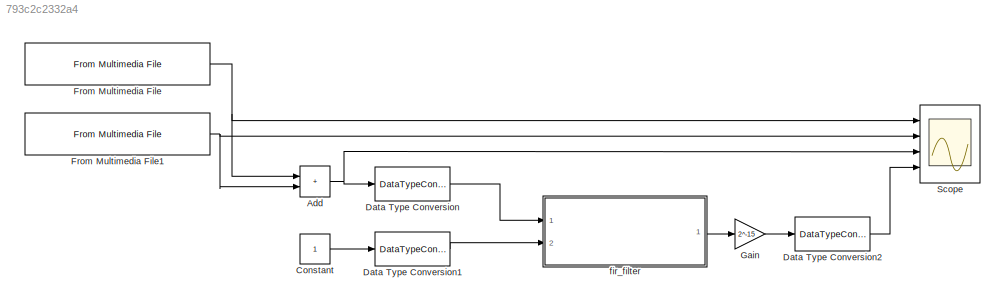
MODEL slx_793c2c2332a4
KIND model
CONFIG AbsTol = auto
CONFIG EnableMultiTasking = off
CONFIG FixedStep = auto
CONFIG MaxStep = auto
CONFIG MinStep = auto
CONFIG RelTol = 1e-3
CONFIG SampleTimeConstraint = Unconstrained
CONFIG Solver = VariableStepAuto
CONFIG SolverName = VariableStepAuto
CONFIG StartTime = 0.0
CONFIG StopTime = 0.05
BLOCK [Sum] Add
  IconShape = rectangular
  Ports = [2, 1]
BLOCK [Constant] Constant
  LockScale = on
  OutDataTypeStr = double
BLOCK [DataTypeConversion] Data Type Conversion
  OutDataTypeStr = int16
  RndMeth = Floor
BLOCK [DataTypeConversion] Data Type Conversion1
  RndMeth = Floor
BLOCK [DataTypeConversion] Data Type Conversion2
  OutDataTypeStr = double
  RndMeth = Floor
BLOCK [Reference] From Multimedia File  REF=dspvision/From Multimedia File
  Ports = [0, 1]
  SourceBlock = dspvision/From Multimedia File
  SourceProductBaseCode = DS,HW,VP
  SourceType = From Multimedia File
BLOCK [Reference] From Multimedia File1  REF=dspvision/From Multimedia File
  Ports = [0, 1]
  SourceBlock = dspvision/From Multimedia File
  SourceProductBaseCode = DS,HW,VP
  SourceType = From Multimedia File
BLOCK [Gain] Gain
  Gain = 2^-15
BLOCK [Scope] Scope
  Floating = off
  NumInputPorts = 4
  Ports = [4]
  ScopeSpecificationString = Simulink.scopes.TimeScopeBlockCfg('CurrentConfiguration', extmgr.ConfigurationSet(extmgr.Configuration('Core','General UI',true),extmgr.Configuration('Core','Source UI',true),extmgr.Configuration('Sources','WiredSimulink',true),extmgr.Configuration('Visuals','Time Domain',true,'SerializedDisplays',{struct('MinYLimReal','-0.9991','MaxYLimReal','0.99782','YLabelReal','','MinYLimMag','0.00000','MaxYL...<+3388ch>
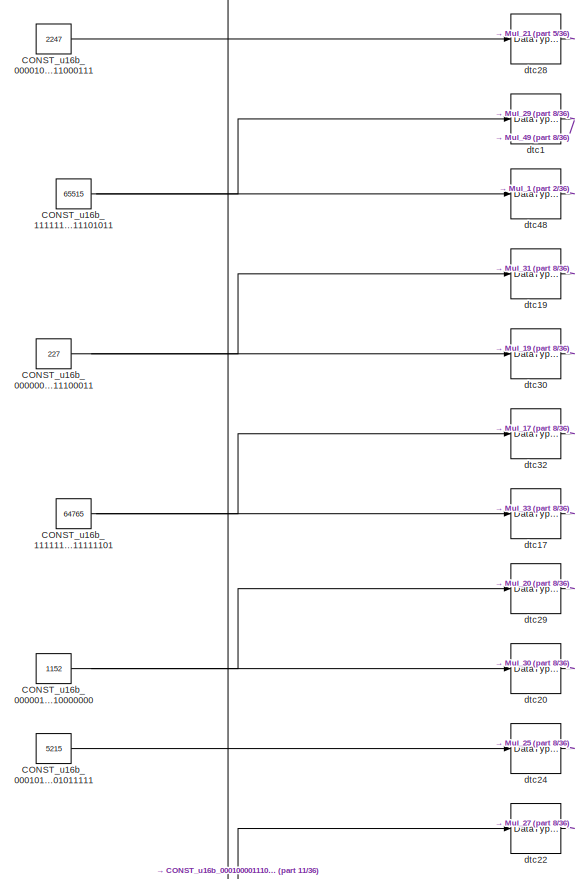
[diagram: fir_filter - part 1/36, top left region]
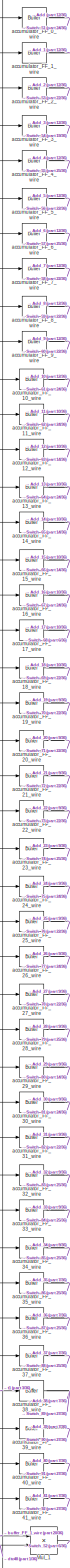
[diagram: fir_filter - part 2/36, top left region]
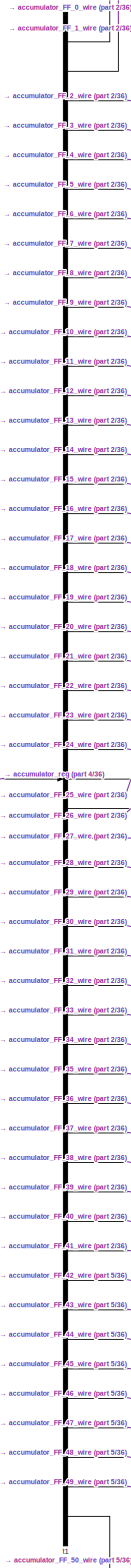
[diagram: fir_filter - part 3/36, top left region]
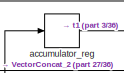
[diagram: fir_filter - part 4/36, top center region]
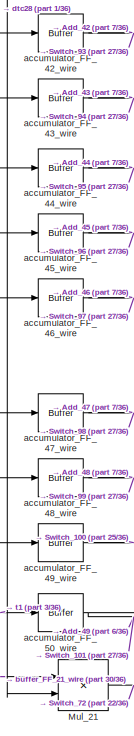
[diagram: fir_filter - part 5/36, top left region]
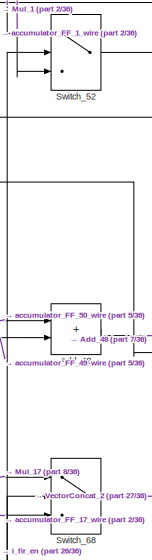
[diagram: fir_filter - part 6/36, top center region]
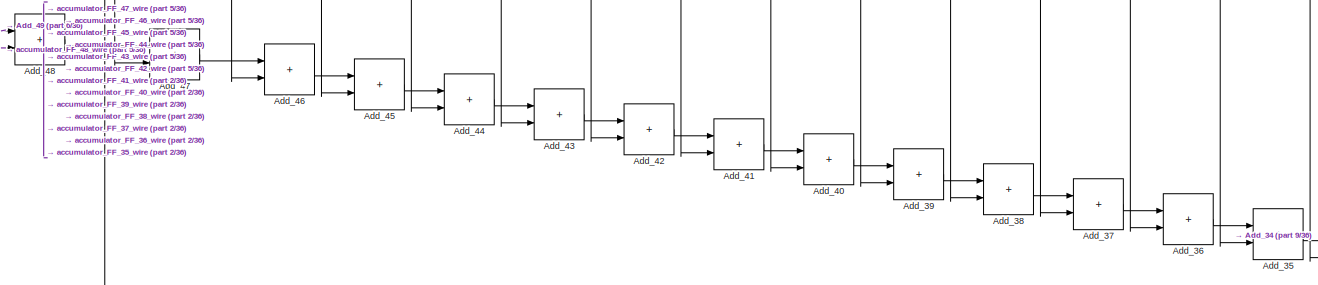
[diagram: fir_filter - part 7/36, top center region]
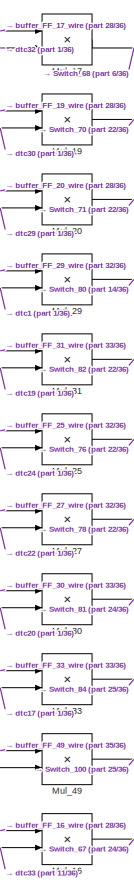
[diagram: fir_filter - part 8/36, top left region]
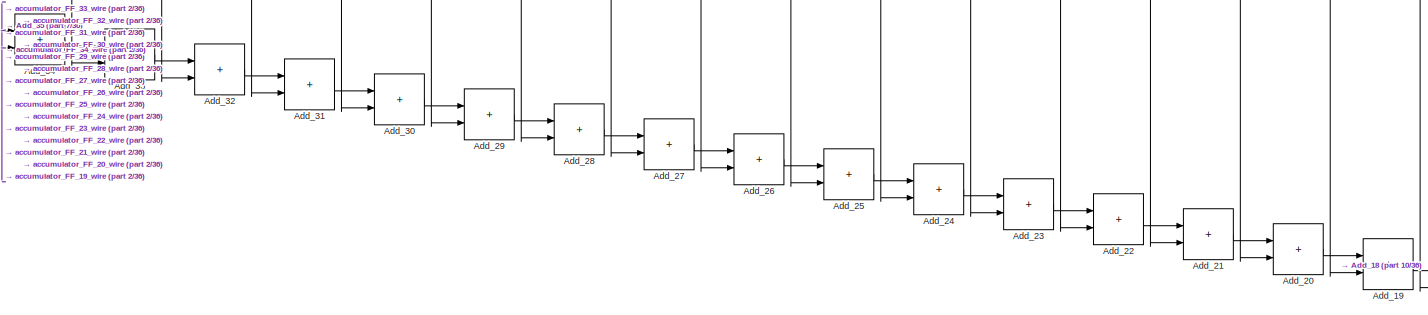
[diagram: fir_filter - part 9/36, top right region]
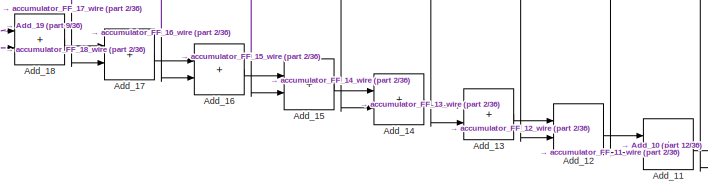
[diagram: fir_filter - part 10/36, top right region]
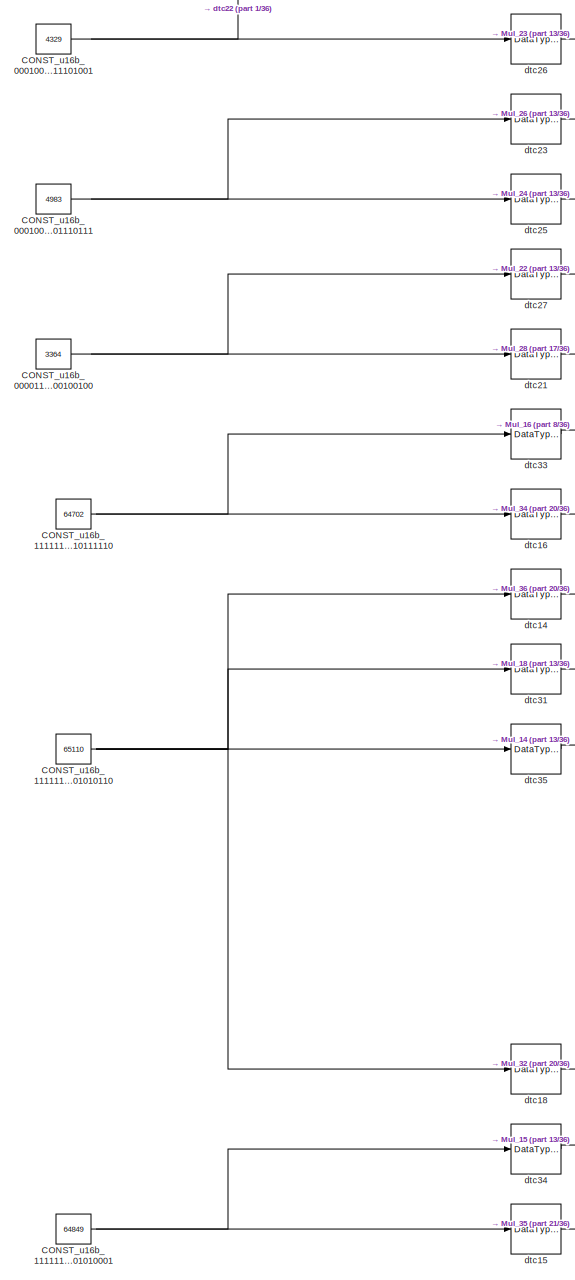
[diagram: fir_filter - part 11/36, top left region]
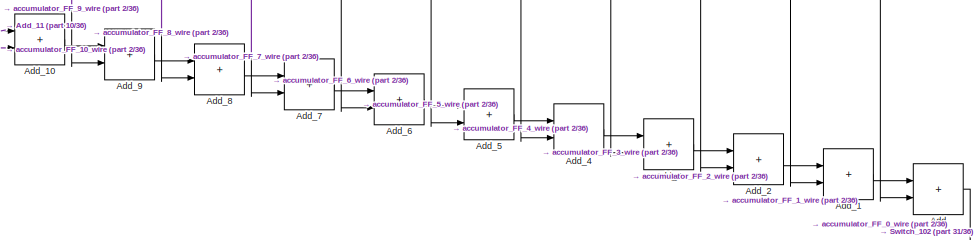
[diagram: fir_filter - part 12/36, top right region]
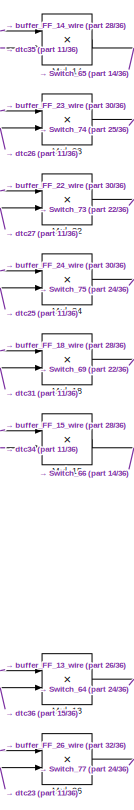
[diagram: fir_filter - part 13/36, top left region]
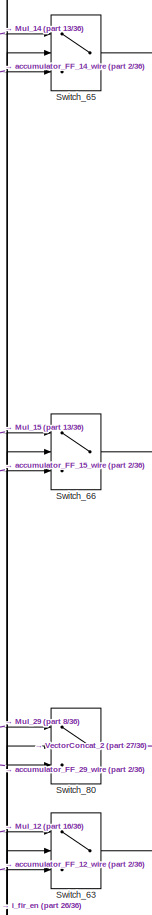
[diagram: fir_filter - part 14/36, top center region]
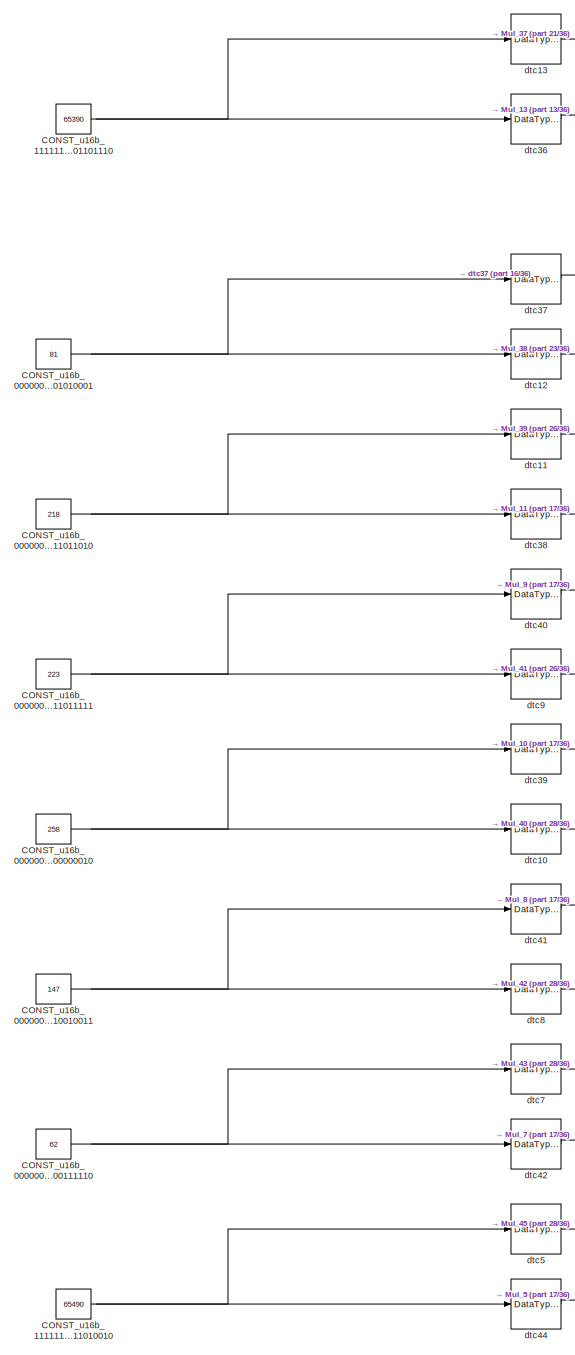
[diagram: fir_filter - part 15/36, middle left region]
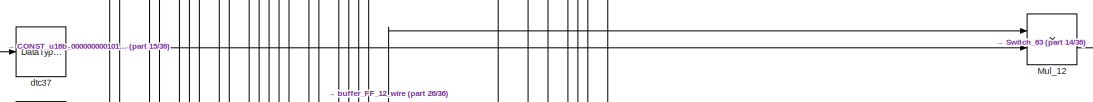
[diagram: fir_filter - part 16/36, middle left region]
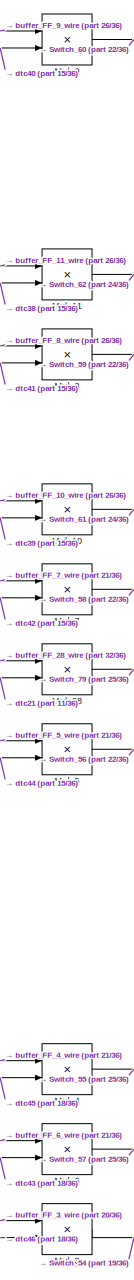
[diagram: fir_filter - part 17/36, middle left region]
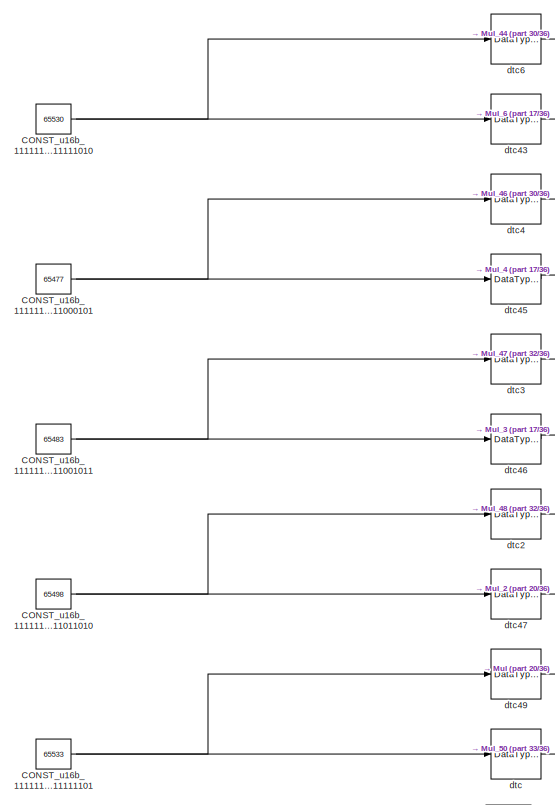
[diagram: fir_filter - part 18/36, middle left region]
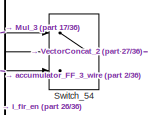
[diagram: fir_filter - part 19/36, central region]
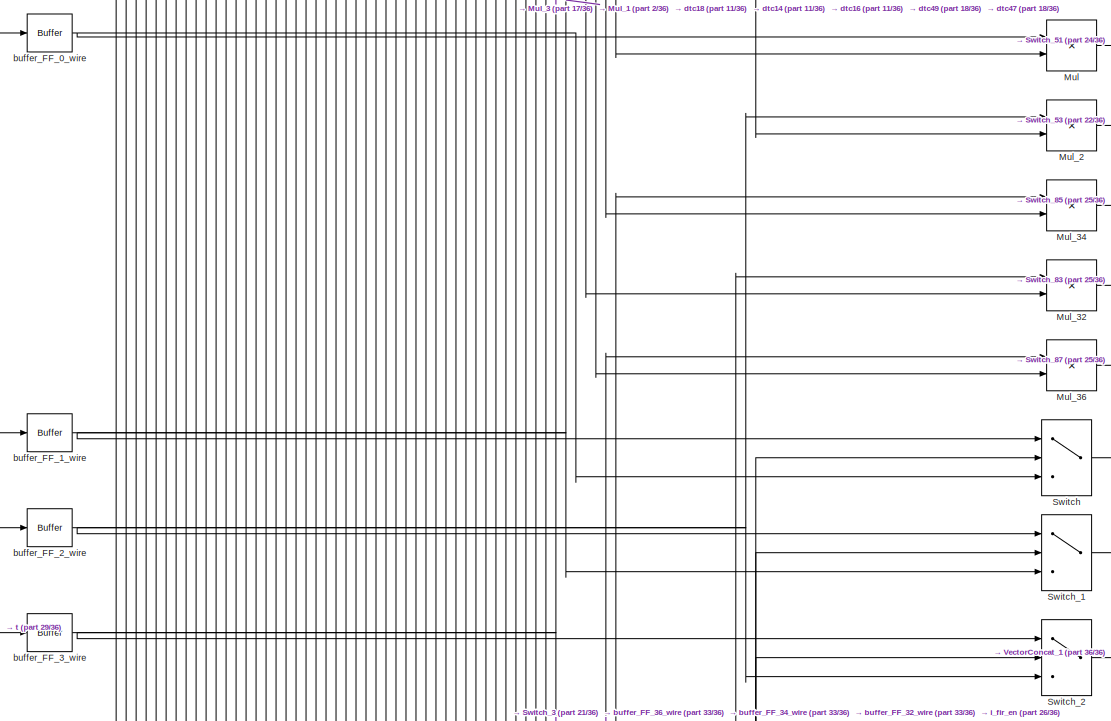
[diagram: fir_filter - part 20/36, middle left region]
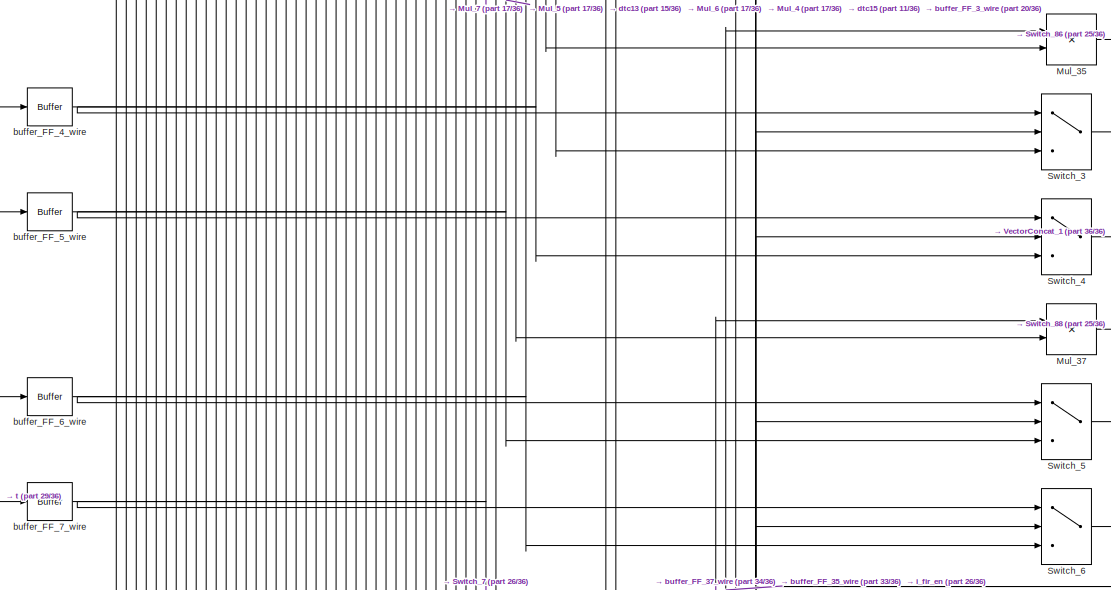
[diagram: fir_filter - part 21/36, middle left region]
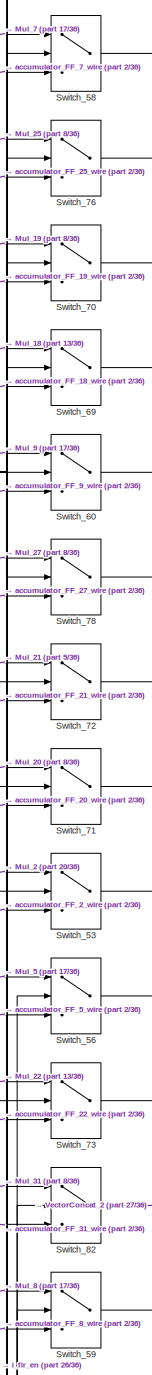
[diagram: fir_filter - part 22/36, central region]
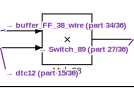
[diagram: fir_filter - part 23/36, middle left region]
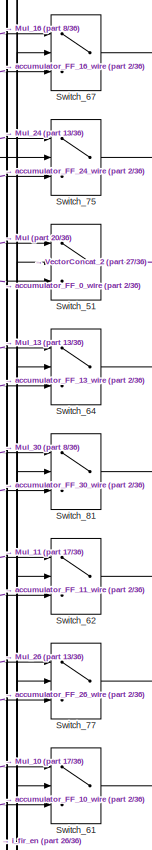
[diagram: fir_filter - part 24/36, central region]
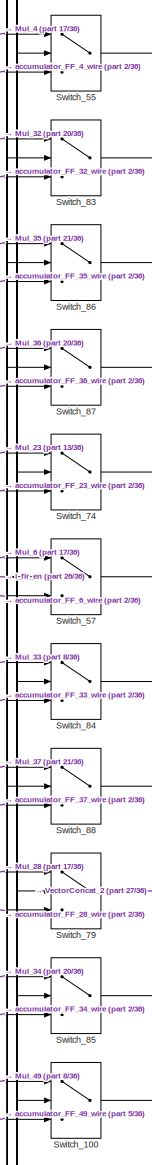
[diagram: fir_filter - part 25/36, bottom center region]
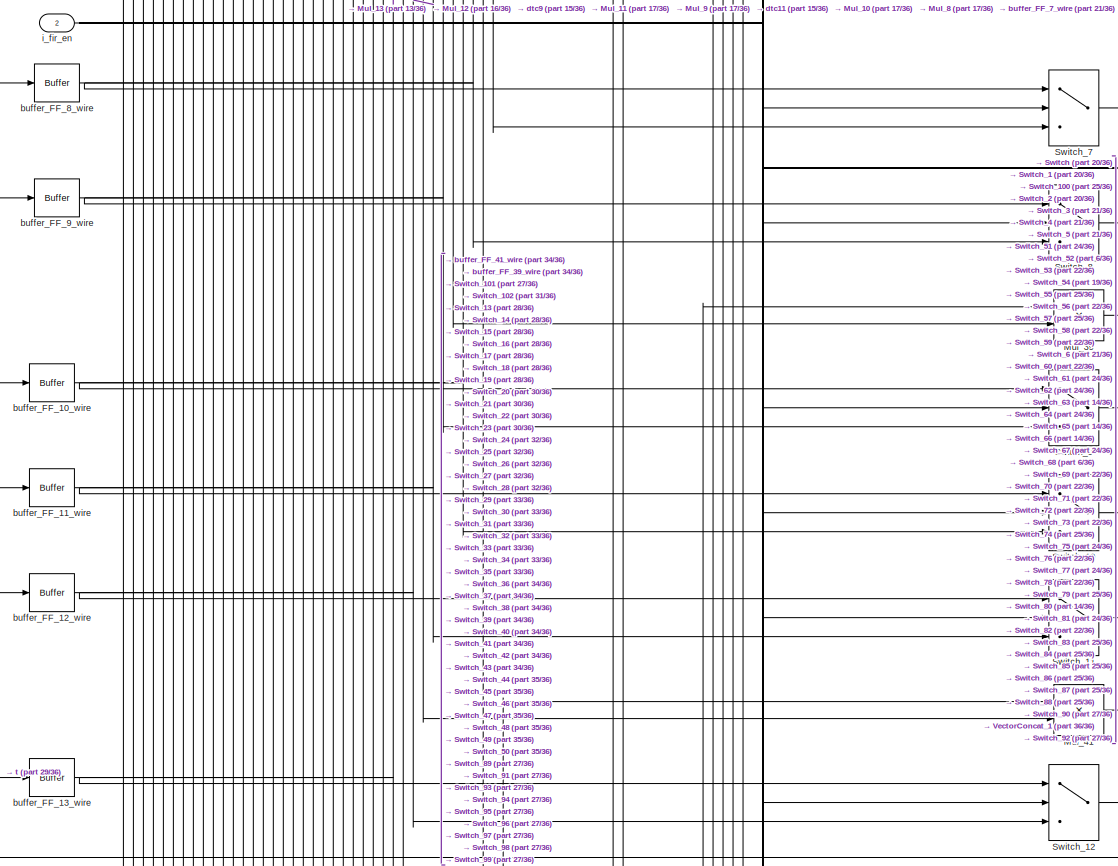
[diagram: fir_filter - part 26/36, bottom left region]
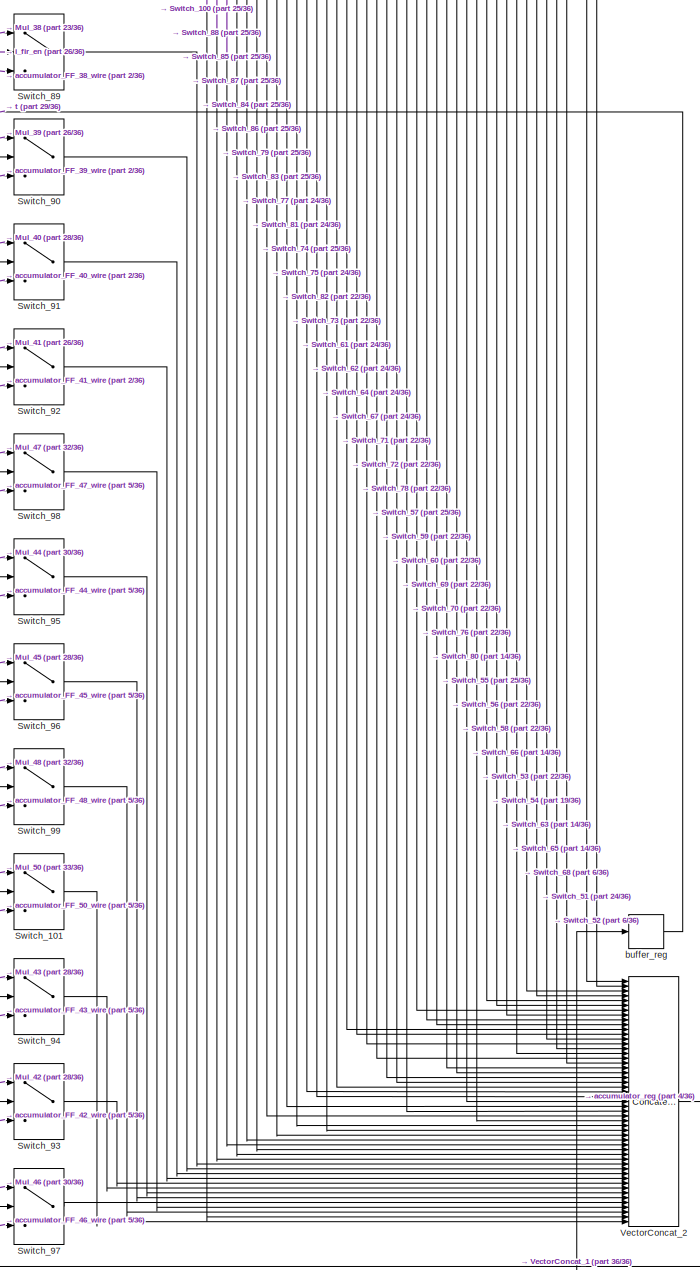
[diagram: fir_filter - part 27/36, bottom center region]
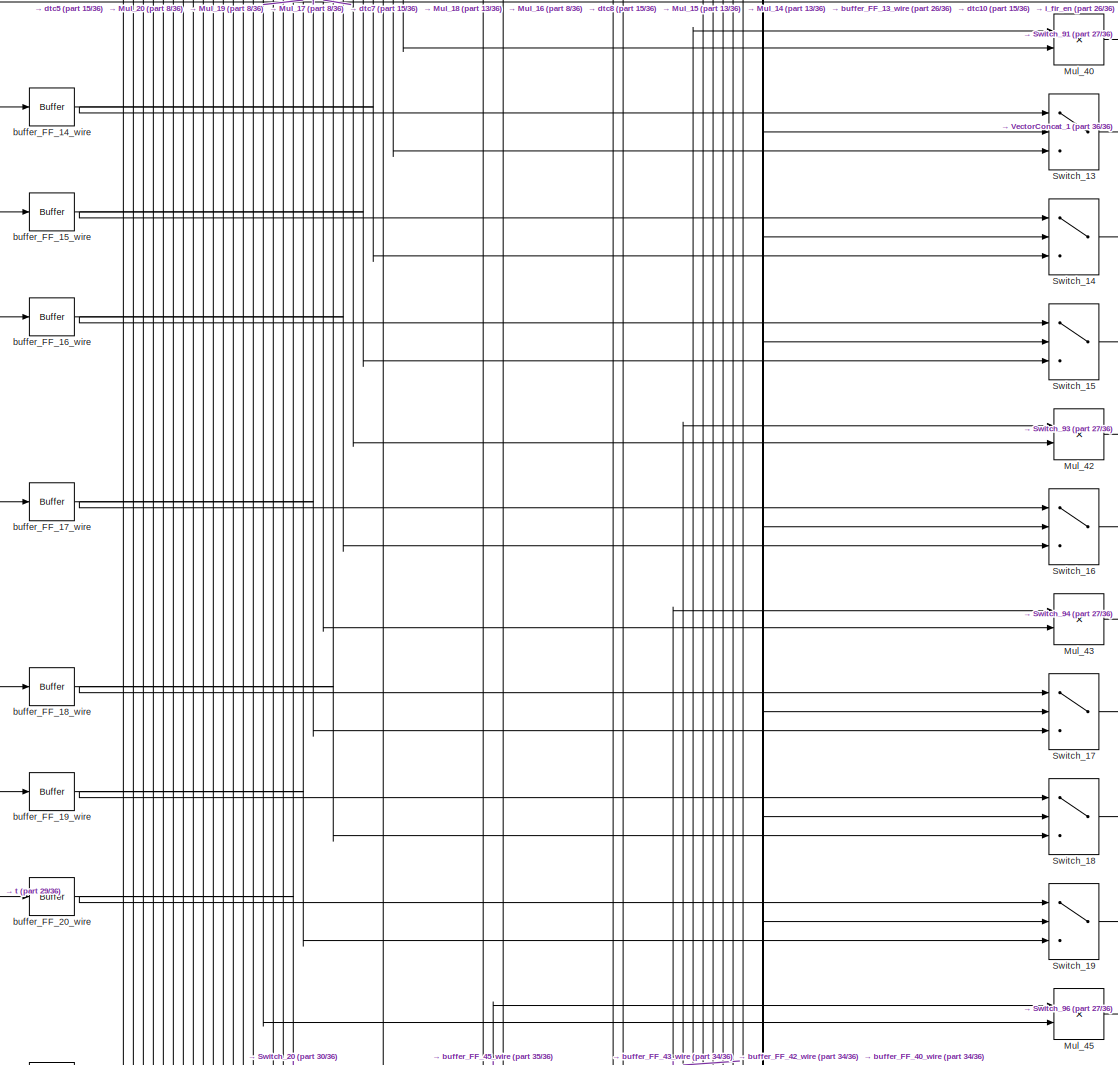
[diagram: fir_filter - part 28/36, bottom left region]
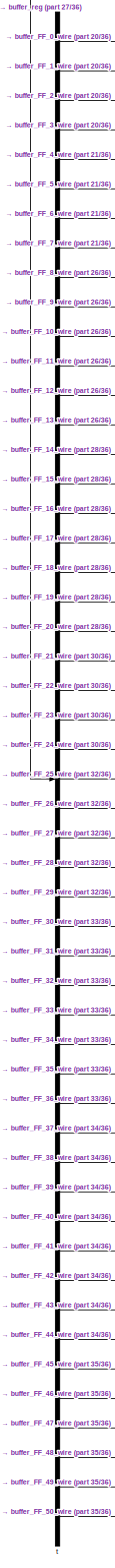
[diagram: fir_filter - part 29/36, bottom left region]
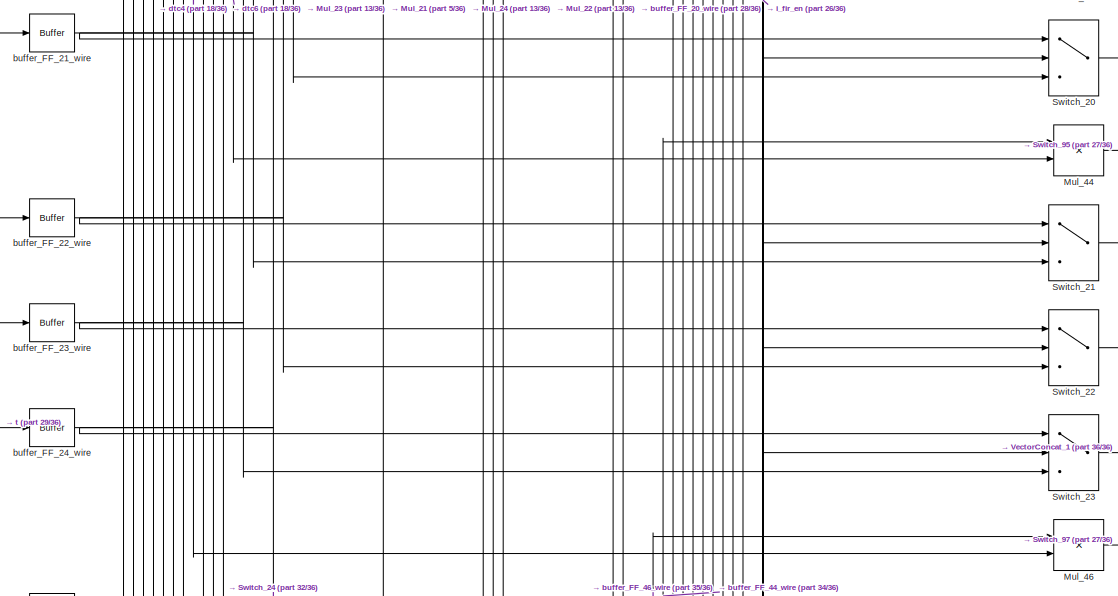
[diagram: fir_filter - part 30/36, bottom left region]
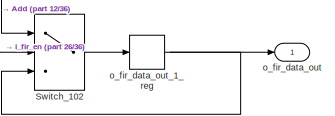
[diagram: fir_filter - part 31/36, bottom right region]
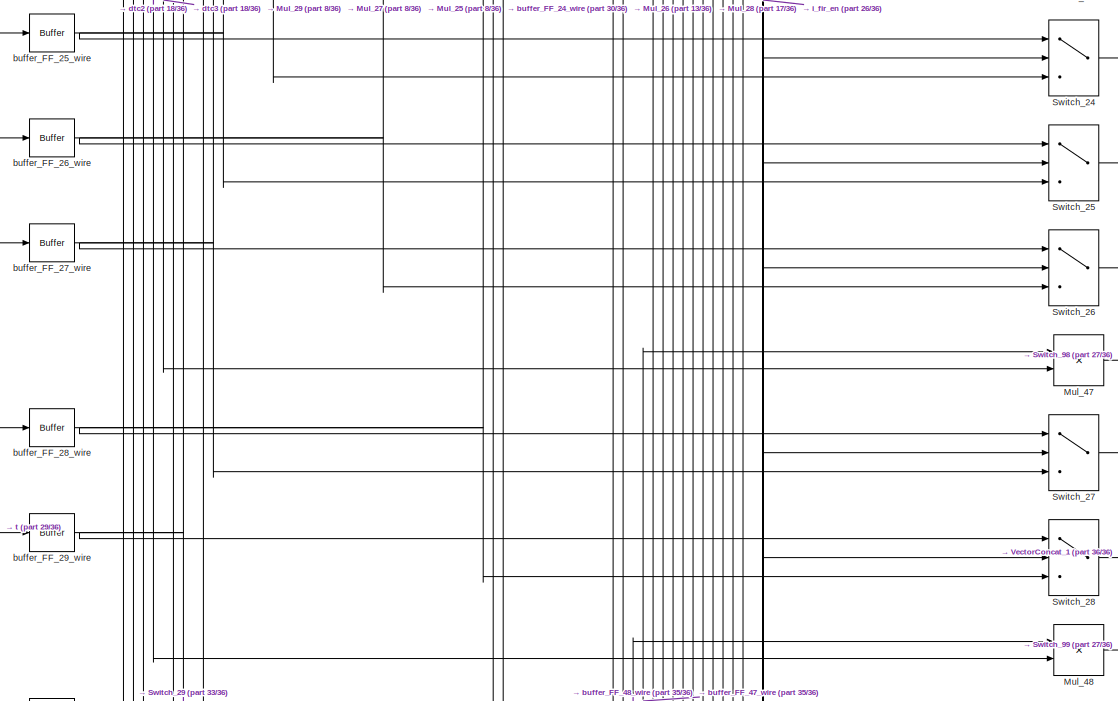
[diagram: fir_filter - part 32/36, bottom left region]
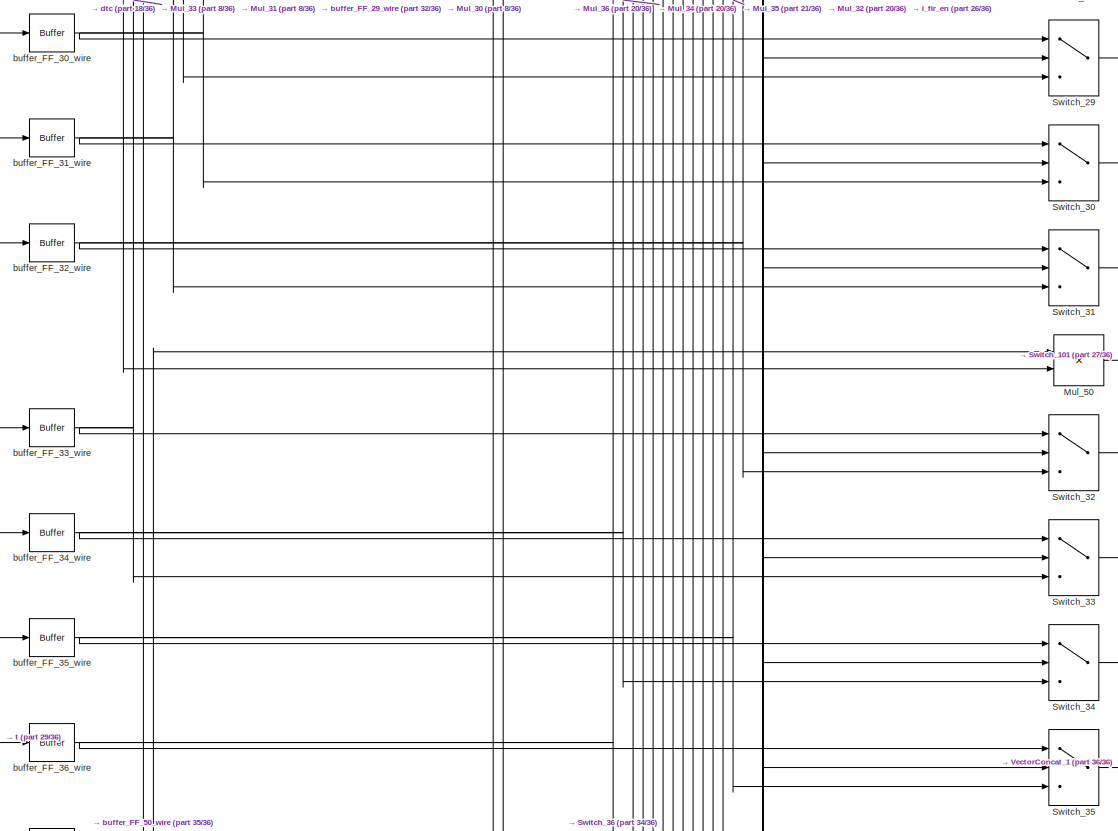
[diagram: fir_filter - part 33/36, bottom left region]
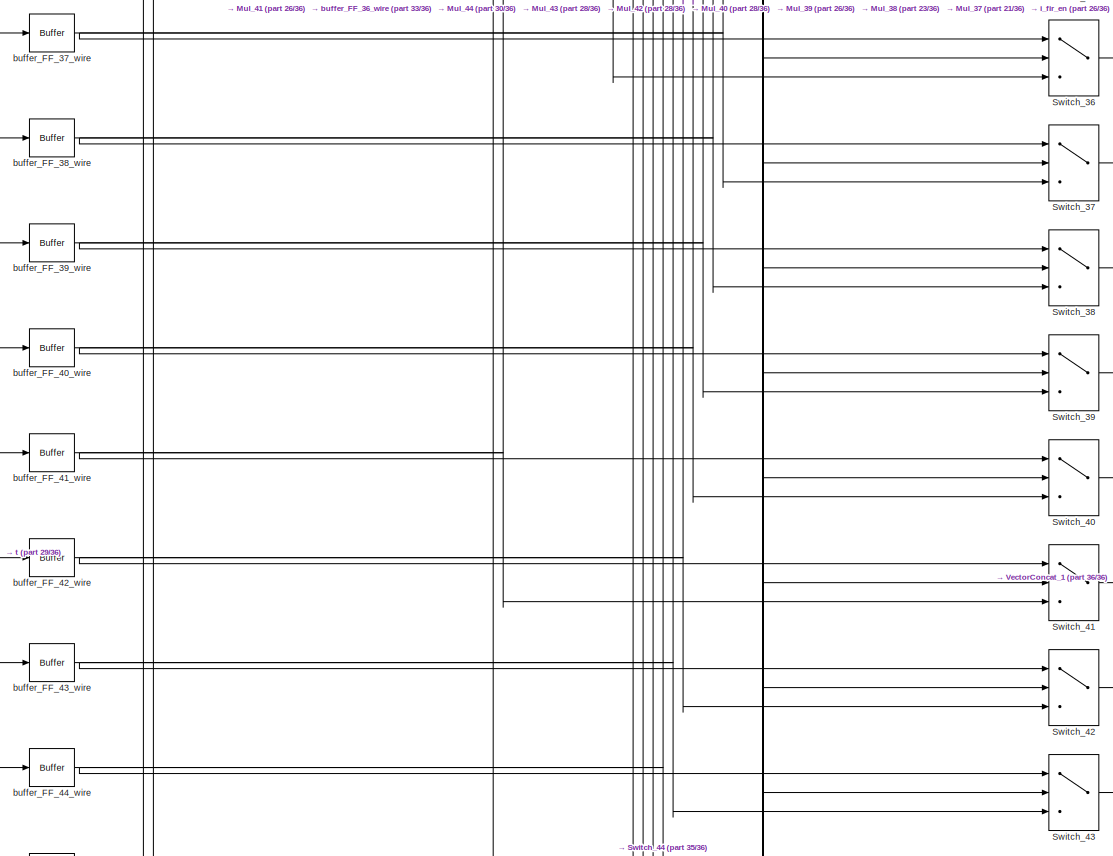
[diagram: fir_filter - part 34/36, bottom left region]
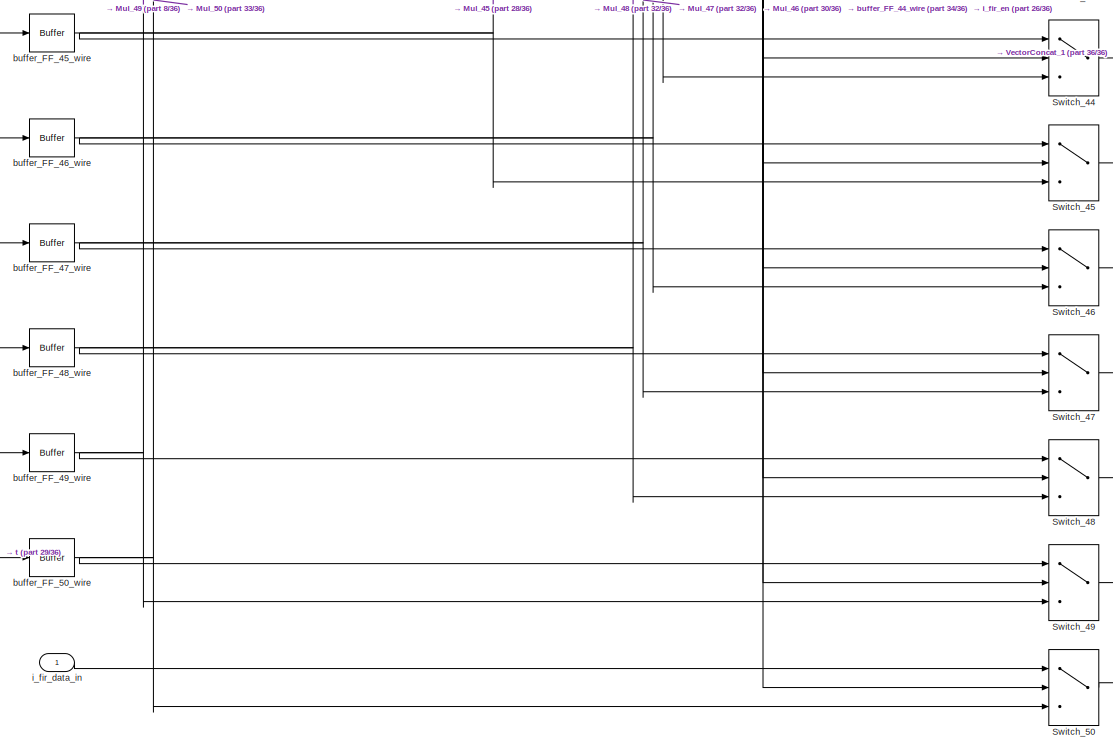
[diagram: fir_filter - part 35/36, bottom left region]
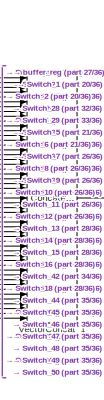
[diagram: fir_filter - part 36/36, bottom center region]
BLOCK [SubSystem] fir_filter
  Ports = [2, 1]
  RequestExecContextInheritance = off
BLOCK [Sum] fir_filter/Add
  AccumDataTypeStr = fixdt(1, 33, 0)
  IconShape = rectangular
  OutDataTypeStr = fixdt(1, 33, 0)
  Ports = [2, 1]
  SampleTime = -1
BLOCK [Sum] fir_filter/Add_1
  AccumDataTypeStr = fixdt(1, 33, 0)
  IconShape = rectangular
  OutDataTypeStr = fixdt(1, 33, 0)
  Ports = [2, 1]
  SampleTime = -1
BLOCK [Sum] fir_filter/Add_10
  AccumDataTypeStr = fixdt(1, 33, 0)
  IconShape = rectangular
  OutDataTypeStr = fixdt(1, 33, 0)
  Ports = [2, 1]
  SampleTime = -1
BLOCK [Sum] fir_filter/Add_11
  AccumDataTypeStr = fixdt(1, 33, 0)
  IconShape = rectangular
  OutDataTypeStr = fixdt(1, 33, 0)
  Ports = [2, 1]
  SampleTime = -1
BLOCK [Sum] fir_filter/Add_12
  AccumDataTypeStr = fixdt(1, 33, 0)
  IconShape = rectangular
  OutDataTypeStr = fixdt(1, 33, 0)
  Ports = [2, 1]
  SampleTime = -1
BLOCK [Sum] fir_filter/Add_13
  AccumDataTypeStr = fixdt(1, 33, 0)
  IconShape = rectangular
  OutDataTypeStr = fixdt(1, 33, 0)
  Ports = [2, 1]
  SampleTime = -1
BLOCK [Sum] fir_filter/Add_14
  AccumDataTypeStr = fixdt(1, 33, 0)
  IconShape = rectangular
  OutDataTypeStr = fixdt(1, 33, 0)
  Ports = [2, 1]
  SampleTime = -1
BLOCK [Sum] fir_filter/Add_15
  AccumDataTypeStr = fixdt(1, 33, 0)
  IconShape = rectangular
  OutDataTypeStr = fixdt(1, 33, 0)
  Ports = [2, 1]
  SampleTime = -1
BLOCK [Sum] fir_filter/Add_16
  AccumDataTypeStr = fixdt(1, 33, 0)
  IconShape = rectangular
  OutDataTypeStr = fixdt(1, 33, 0)
  Ports = [2, 1]
  SampleTime = -1
BLOCK [Sum] fir_filter/Add_17
  AccumDataTypeStr = fixdt(1, 33, 0)
  IconShape = rectangular
  OutDataTypeStr = fixdt(1, 33, 0)
  Ports = [2, 1]
  SampleTime = -1
BLOCK [Sum] fir_filter/Add_18
  AccumDataTypeStr = fixdt(1, 33, 0)
  IconShape = rectangular
  OutDataTypeStr = fixdt(1, 33, 0)
  Ports = [2, 1]
  SampleTime = -1
BLOCK [Sum] fir_filter/Add_19
  AccumDataTypeStr = fixdt(1, 33, 0)
  IconShape = rectangular
  OutDataTypeStr = fixdt(1, 33, 0)
  Ports = [2, 1]
  SampleTime = -1
BLOCK [Sum] fir_filter/Add_2
  AccumDataTypeStr = fixdt(1, 33, 0)
  IconShape = rectangular
  OutDataTypeStr = fixdt(1, 33, 0)
  Ports = [2, 1]
  SampleTime = -1
BLOCK [Sum] fir_filter/Add_20
  AccumDataTypeStr = fixdt(1, 33, 0)
  IconShape = rectangular
  OutDataTypeStr = fixdt(1, 33, 0)
  Ports = [2, 1]
  SampleTime = -1
BLOCK [Sum] fir_filter/Add_21
  AccumDataTypeStr = fixdt(1, 33, 0)
  IconShape = rectangular
  OutDataTypeStr = fixdt(1, 33, 0)
  Ports = [2, 1]
  SampleTime = -1
BLOCK [Sum] fir_filter/Add_22
  AccumDataTypeStr = fixdt(1, 33, 0)
  IconShape = rectangular
  OutDataTypeStr = fixdt(1, 33, 0)
  Ports = [2, 1]
  SampleTime = -1
BLOCK [Sum] fir_filter/Add_23
  AccumDataTypeStr = fixdt(1, 33, 0)
  IconShape = rectangular
  OutDataTypeStr = fixdt(1, 33, 0)
  Ports = [2, 1]
  SampleTime = -1
BLOCK [Sum] fir_filter/Add_24
  AccumDataTypeStr = fixdt(1, 33, 0)
  IconShape = rectangular
  OutDataTypeStr = fixdt(1, 33, 0)
  Ports = [2, 1]
  SampleTime = -1
BLOCK [Sum] fir_filter/Add_25
  AccumDataTypeStr = fixdt(1, 33, 0)
  IconShape = rectangular
  OutDataTypeStr = fixdt(1, 33, 0)
  Ports = [2, 1]
  SampleTime = -1
BLOCK [Sum] fir_filter/Add_26
  AccumDataTypeStr = fixdt(1, 33, 0)
  IconShape = rectangular
  OutDataTypeStr = fixdt(1, 33, 0)
  Ports = [2, 1]
  SampleTime = -1
BLOCK [Sum] fir_filter/Add_27
  AccumDataTypeStr = fixdt(1, 33, 0)
  IconShape = rectangular
  OutDataTypeStr = fixdt(1, 33, 0)
  Ports = [2, 1]
  SampleTime = -1
BLOCK [Sum] fir_filter/Add_28
  AccumDataTypeStr = fixdt(1, 33, 0)
  IconShape = rectangular
  OutDataTypeStr = fixdt(1, 33, 0)
  Ports = [2, 1]
  SampleTime = -1
BLOCK [Sum] fir_filter/Add_29
  AccumDataTypeStr = fixdt(1, 33, 0)
  IconShape = rectangular
  OutDataTypeStr = fixdt(1, 33, 0)
  Ports = [2, 1]
  SampleTime = -1
BLOCK [Sum] fir_filter/Add_3
  AccumDataTypeStr = fixdt(1, 33, 0)
  IconShape = rectangular
  OutDataTypeStr = fixdt(1, 33, 0)
  Ports = [2, 1]
  SampleTime = -1
BLOCK [Sum] fir_filter/Add_30
  AccumDataTypeStr = fixdt(1, 33, 0)
  IconShape = rectangular
  OutDataTypeStr = fixdt(1, 33, 0)
  Ports = [2, 1]
  SampleTime = -1
BLOCK [Sum] fir_filter/Add_31
  AccumDataTypeStr = fixdt(1, 33, 0)
  IconShape = rectangular
  OutDataTypeStr = fixdt(1, 33, 0)
  Ports = [2, 1]
  SampleTime = -1
BLOCK [Sum] fir_filter/Add_32
  AccumDataTypeStr = fixdt(1, 33, 0)
  IconShape = rectangular
  OutDataTypeStr = fixdt(1, 33, 0)
  Ports = [2, 1]
  SampleTime = -1
BLOCK [Sum] fir_filter/Add_33
  AccumDataTypeStr = fixdt(1, 33, 0)
  IconShape = rectangular
  OutDataTypeStr = fixdt(1, 33, 0)
  Ports = [2, 1]
  SampleTime = -1
BLOCK [Sum] fir_filter/Add_34
  AccumDataTypeStr = fixdt(1, 33, 0)
  IconShape = rectangular
  OutDataTypeStr = fixdt(1, 33, 0)
  Ports = [2, 1]
  SampleTime = -1
BLOCK [Sum] fir_filter/Add_35
  AccumDataTypeStr = fixdt(1, 33, 0)
  IconShape = rectangular
  OutDataTypeStr = fixdt(1, 33, 0)
  Ports = [2, 1]
  SampleTime = -1
BLOCK [Sum] fir_filter/Add_36
  AccumDataTypeStr = fixdt(1, 33, 0)
  IconShape = rectangular
  OutDataTypeStr = fixdt(1, 33, 0)
  Ports = [2, 1]
  SampleTime = -1
BLOCK [Sum] fir_filter/Add_37
  AccumDataTypeStr = fixdt(1, 33, 0)
  IconShape = rectangular
  OutDataTypeStr = fixdt(1, 33, 0)
  Ports = [2, 1]
  SampleTime = -1
BLOCK [Sum] fir_filter/Add_38
  AccumDataTypeStr = fixdt(1, 33, 0)
  IconShape = rectangular
  OutDataTypeStr = fixdt(1, 33, 0)
  Ports = [2, 1]
  SampleTime = -1
BLOCK [Sum] fir_filter/Add_39
  AccumDataTypeStr = fixdt(1, 33, 0)
  IconShape = rectangular
  OutDataTypeStr = fixdt(1, 33, 0)
  Ports = [2, 1]
  SampleTime = -1
BLOCK [Sum] fir_filter/Add_4
  AccumDataTypeStr = fixdt(1, 33, 0)
  IconShape = rectangular
  OutDataTypeStr = fixdt(1, 33, 0)
  Ports = [2, 1]
  SampleTime = -1
BLOCK [Sum] fir_filter/Add_40
  AccumDataTypeStr = fixdt(1, 33, 0)
  IconShape = rectangular
  OutDataTypeStr = fixdt(1, 33, 0)
  Ports = [2, 1]
  SampleTime = -1
BLOCK [Sum] fir_filter/Add_41
  AccumDataTypeStr = fixdt(1, 33, 0)
  IconShape = rectangular
  OutDataTypeStr = fixdt(1, 33, 0)
  Ports = [2, 1]
  SampleTime = -1
BLOCK [Sum] fir_filter/Add_42
  AccumDataTypeStr = fixdt(1, 33, 0)
  IconShape = rectangular
  OutDataTypeStr = fixdt(1, 33, 0)
  Ports = [2, 1]
  SampleTime = -1
BLOCK [Sum] fir_filter/Add_43
  AccumDataTypeStr = fixdt(1, 33, 0)
  IconShape = rectangular
  OutDataTypeStr = fixdt(1, 33, 0)
  Ports = [2, 1]
  SampleTime = -1
BLOCK [Sum] fir_filter/Add_44
  AccumDataTypeStr = fixdt(1, 33, 0)
  IconShape = rectangular
  OutDataTypeStr = fixdt(1, 33, 0)
  Ports = [2, 1]
  SampleTime = -1
BLOCK [Sum] fir_filter/Add_45
  AccumDataTypeStr = fixdt(1, 33, 0)
  IconShape = rectangular
  OutDataTypeStr = fixdt(1, 33, 0)
  Ports = [2, 1]
  SampleTime = -1
BLOCK [Sum] fir_filter/Add_46
  AccumDataTypeStr = fixdt(1, 33, 0)
  IconShape = rectangular
  OutDataTypeStr = fixdt(1, 33, 0)
  Ports = [2, 1]
  SampleTime = -1
BLOCK [Sum] fir_filter/Add_47
  AccumDataTypeStr = fixdt(1, 33, 0)
  IconShape = rectangular
  OutDataTypeStr = fixdt(1, 33, 0)
  Ports = [2, 1]
  SampleTime = -1
BLOCK [Sum] fir_filter/Add_48
  AccumDataTypeStr = fixdt(1, 33, 0)
  IconShape = rectangular
  OutDataTypeStr = fixdt(1, 33, 0)
  Ports = [2, 1]
  SampleTime = -1
BLOCK [Sum] fir_filter/Add_49
  AccumDataTypeStr = fixdt(1, 33, 0)
  IconShape = rectangular
  OutDataTypeStr = fixdt(1, 33, 0)
  Ports = [2, 1]
  SampleTime = -1
BLOCK [Sum] fir_filter/Add_5
  AccumDataTypeStr = fixdt(1, 33, 0)
  IconShape = rectangular
  OutDataTypeStr = fixdt(1, 33, 0)
  Ports = [2, 1]
  SampleTime = -1
BLOCK [Sum] fir_filter/Add_6
  AccumDataTypeStr = fixdt(1, 33, 0)
  IconShape = rectangular
  OutDataTypeStr = fixdt(1, 33, 0)
  Ports = [2, 1]
  SampleTime = -1
BLOCK [Sum] fir_filter/Add_7
  AccumDataTypeStr = fixdt(1, 33, 0)
  IconShape = rectangular
  OutDataTypeStr = fixdt(1, 33, 0)
  Ports = [2, 1]
  SampleTime = -1
BLOCK [Sum] fir_filter/Add_8
  AccumDataTypeStr = fixdt(1, 33, 0)
  IconShape = rectangular
  OutDataTypeStr = fixdt(1, 33, 0)
  Ports = [2, 1]
  SampleTime = -1
BLOCK [Sum] fir_filter/Add_9
  AccumDataTypeStr = fixdt(1, 33, 0)
  IconShape = rectangular
  OutDataTypeStr = fixdt(1, 33, 0)
  Ports = [2, 1]
  SampleTime = -1
BLOCK [Constant] fir_filter/CONST_u16b_0000000000111110
  OutDataTypeStr = uint16
  SampleTime = -1
  Value = 62
BLOCK [Constant] fir_filter/CONST_u16b_0000000001010001
  OutDataTypeStr = uint16
  SampleTime = -1
  Value = 81
BLOCK [Constant] fir_filter/CONST_u16b_0000000010010011
  OutDataTypeStr = uint16
  SampleTime = -1
  Value = 147
BLOCK [Constant] fir_filter/CONST_u16b_0000000011011010
  OutDataTypeStr = uint16
  SampleTime = -1
  Value = 218
BLOCK [Constant] fir_filter/CONST_u16b_0000000011011111
  OutDataTypeStr = uint16
  SampleTime = -1
  Value = 223
BLOCK [Constant] fir_filter/CONST_u16b_0000000011100011
  OutDataTypeStr = uint16
  SampleTime = -1
  Value = 227
BLOCK [Constant] fir_filter/CONST_u16b_0000000100000010
  OutDataTypeStr = uint16
  SampleTime = -1
  Value = 258
BLOCK [Constant] fir_filter/CONST_u16b_0000010010000000
  OutDataTypeStr = uint16
  SampleTime = -1
  Value = 1152
BLOCK [Constant] fir_filter/CONST_u16b_0000100011000111
  OutDataTypeStr = uint16
  SampleTime = -1
  Value = 2247
BLOCK [Constant] fir_filter/CONST_u16b_0000110100100100
  OutDataTypeStr = uint16
  SampleTime = -1
  Value = 3364
BLOCK [Constant] fir_filter/CONST_u16b_0001000011101001
  OutDataTypeStr = uint16
  SampleTime = -1
  Value = 4329
BLOCK [Constant] fir_filter/CONST_u16b_0001001101110111
  OutDataTypeStr = uint16
  SampleTime = -1
  Value = 4983
BLOCK [Constant] fir_filter/CONST_u16b_0001010001011111
  OutDataTypeStr = uint16
  SampleTime = -1
  Value = 5215
BLOCK [Constant] fir_filter/CONST_u16b_1111110010111110
  OutDataTypeStr = uint16
  SampleTime = -1
  Value = 64702
BLOCK [Constant] fir_filter/CONST_u16b_1111110011111101
  OutDataTypeStr = uint16
  SampleTime = -1
  Value = 64765
BLOCK [Constant] fir_filter/CONST_u16b_1111110101010001
  OutDataTypeStr = uint16
  SampleTime = -1
  Value = 64849
BLOCK [Constant] fir_filter/CONST_u16b_1111111001010110
  OutDataTypeStr = uint16
  SampleTime = -1
  Value = 65110
BLOCK [Constant] fir_filter/CONST_u16b_1111111101101110
  OutDataTypeStr = uint16
  SampleTime = -1
  Value = 65390
BLOCK [Constant] fir_filter/CONST_u16b_1111111111000101
  OutDataTypeStr = uint16
  SampleTime = -1
  Value = 65477
BLOCK [Constant] fir_filter/CONST_u16b_1111111111001011
  OutDataTypeStr = uint16
  SampleTime = -1
  Value = 65483
BLOCK [Constant] fir_filter/CONST_u16b_1111111111010010
  OutDataTypeStr = uint16
  SampleTime = -1
  Value = 65490
BLOCK [Constant] fir_filter/CONST_u16b_1111111111011010
  OutDataTypeStr = uint16
  SampleTime = -1
  Value = 65498
BLOCK [Constant] fir_filter/CONST_u16b_1111111111101011
  OutDataTypeStr = uint16
  SampleTime = -1
  Value = 65515
BLOCK [Constant] fir_filter/CONST_u16b_1111111111111010
  OutDataTypeStr = uint16
  SampleTime = -1
  Value = 65530
BLOCK [Constant] fir_filter/CONST_u16b_1111111111111101
  OutDataTypeStr = uint16
  SampleTime = -1
  Value = 65533
BLOCK [Product] fir_filter/Mul
  Inputs = **
  OutDataTypeStr = fixdt(1, 33, 0)
  Ports = [2, 1]
  SampleTime = -1
BLOCK [Product] fir_filter/Mul_1
  Inputs = **
  OutDataTypeStr = fixdt(1, 33, 0)
  Ports = [2, 1]
  SampleTime = -1
BLOCK [Product] fir_filter/Mul_10
  Inputs = **
  OutDataTypeStr = fixdt(1, 33, 0)
  Ports = [2, 1]
  SampleTime = -1
BLOCK [Product] fir_filter/Mul_11
  Inputs = **
  OutDataTypeStr = fixdt(1, 33, 0)
  Ports = [2, 1]
  SampleTime = -1
BLOCK [Product] fir_filter/Mul_12
  Inputs = **
  OutDataTypeStr = fixdt(1, 33, 0)
  Ports = [2, 1]
  SampleTime = -1
BLOCK [Product] fir_filter/Mul_13
  Inputs = **
  OutDataTypeStr = fixdt(1, 33, 0)
  Ports = [2, 1]
  SampleTime = -1
BLOCK [Product] fir_filter/Mul_14
  Inputs = **
  OutDataTypeStr = fixdt(1, 33, 0)
  Ports = [2, 1]
  SampleTime = -1
BLOCK [Product] fir_filter/Mul_15
  Inputs = **
  OutDataTypeStr = fixdt(1, 33, 0)
  Ports = [2, 1]
  SampleTime = -1
BLOCK [Product] fir_filter/Mul_16
  Inputs = **
  OutDataTypeStr = fixdt(1, 33, 0)
  Ports = [2, 1]
  SampleTime = -1
BLOCK [Product] fir_filter/Mul_17
  Inputs = **
  OutDataTypeStr = fixdt(1, 33, 0)
  Ports = [2, 1]
  SampleTime = -1
BLOCK [Product] fir_filter/Mul_18
  Inputs = **
  OutDataTypeStr = fixdt(1, 33, 0)
  Ports = [2, 1]
  SampleTime = -1
BLOCK [Product] fir_filter/Mul_19
  Inputs = **
  OutDataTypeStr = fixdt(1, 33, 0)
  Ports = [2, 1]
  SampleTime = -1
BLOCK [Product] fir_filter/Mul_2
  Inputs = **
  OutDataTypeStr = fixdt(1, 33, 0)
  Ports = [2, 1]
  SampleTime = -1
BLOCK [Product] fir_filter/Mul_20
  Inputs = **
  OutDataTypeStr = fixdt(1, 33, 0)
  Ports = [2, 1]
  SampleTime = -1
BLOCK [Product] fir_filter/Mul_21
  Inputs = **
  OutDataTypeStr = fixdt(1, 33, 0)
  Ports = [2, 1]
  SampleTime = -1
BLOCK [Product] fir_filter/Mul_22
  Inputs = **
  OutDataTypeStr = fixdt(1, 33, 0)
  Ports = [2, 1]
  SampleTime = -1
BLOCK [Product] fir_filter/Mul_23
  Inputs = **
  OutDataTypeStr = fixdt(1, 33, 0)
  Ports = [2, 1]
  SampleTime = -1
BLOCK [Product] fir_filter/Mul_24
  Inputs = **
  OutDataTypeStr = fixdt(1, 33, 0)
  Ports = [2, 1]
  SampleTime = -1
BLOCK [Product] fir_filter/Mul_25
  Inputs = **
  OutDataTypeStr = fixdt(1, 33, 0)
  Ports = [2, 1]
  SampleTime = -1
BLOCK [Product] fir_filter/Mul_26
  Inputs = **
  OutDataTypeStr = fixdt(1, 33, 0)
  Ports = [2, 1]
  SampleTime = -1
BLOCK [Product] fir_filter/Mul_27
  Inputs = **
  OutDataTypeStr = fixdt(1, 33, 0)
  Ports = [2, 1]
  SampleTime = -1
BLOCK [Product] fir_filter/Mul_28
  Inputs = **
  OutDataTypeStr = fixdt(1, 33, 0)
  Ports = [2, 1]
  SampleTime = -1
BLOCK [Product] fir_filter/Mul_29
  Inputs = **
  OutDataTypeStr = fixdt(1, 33, 0)
  Ports = [2, 1]
  SampleTime = -1
BLOCK [Product] fir_filter/Mul_3
  Inputs = **
  OutDataTypeStr = fixdt(1, 33, 0)
  Ports = [2, 1]
  SampleTime = -1
BLOCK [Product] fir_filter/Mul_30
  Inputs = **
  OutDataTypeStr = fixdt(1, 33, 0)
  Ports = [2, 1]
  SampleTime = -1
BLOCK [Product] fir_filter/Mul_31
  Inputs = **
  OutDataTypeStr = fixdt(1, 33, 0)
  Ports = [2, 1]
  SampleTime = -1
BLOCK [Product] fir_filter/Mul_32
  Inputs = **
  OutDataTypeStr = fixdt(1, 33, 0)
  Ports = [2, 1]
  SampleTime = -1
BLOCK [Product] fir_filter/Mul_33
  Inputs = **
  OutDataTypeStr = fixdt(1, 33, 0)
  Ports = [2, 1]
  SampleTime = -1
BLOCK [Product] fir_filter/Mul_34
  Inputs = **
  OutDataTypeStr = fixdt(1, 33, 0)
  Ports = [2, 1]
  SampleTime = -1
BLOCK [Product] fir_filter/Mul_35
  Inputs = **
  OutDataTypeStr = fixdt(1, 33, 0)
  Ports = [2, 1]
  SampleTime = -1
BLOCK [Product] fir_filter/Mul_36
  Inputs = **
  OutDataTypeStr = fixdt(1, 33, 0)
  Ports = [2, 1]
  SampleTime = -1
BLOCK [Product] fir_filter/Mul_37
  Inputs = **
  OutDataTypeStr = fixdt(1, 33, 0)
  Ports = [2, 1]
  SampleTime = -1
BLOCK [Product] fir_filter/Mul_38
  Inputs = **
  OutDataTypeStr = fixdt(1, 33, 0)
  Ports = [2, 1]
  SampleTime = -1
BLOCK [Product] fir_filter/Mul_39
  Inputs = **
  OutDataTypeStr = fixdt(1, 33, 0)
  Ports = [2, 1]
  SampleTime = -1
BLOCK [Product] fir_filter/Mul_4
  Inputs = **
  OutDataTypeStr = fixdt(1, 33, 0)
  Ports = [2, 1]
  SampleTime = -1
BLOCK [Product] fir_filter/Mul_40
  Inputs = **
  OutDataTypeStr = fixdt(1, 33, 0)
  Ports = [2, 1]
  SampleTime = -1
BLOCK [Product] fir_filter/Mul_41
  Inputs = **
  OutDataTypeStr = fixdt(1, 33, 0)
  Ports = [2, 1]
  SampleTime = -1
BLOCK [Product] fir_filter/Mul_42
  Inputs = **
  OutDataTypeStr = fixdt(1, 33, 0)
  Ports = [2, 1]
  SampleTime = -1
BLOCK [Product] fir_filter/Mul_43
  Inputs = **
  OutDataTypeStr = fixdt(1, 33, 0)
  Ports = [2, 1]
  SampleTime = -1
BLOCK [Product] fir_filter/Mul_44
  Inputs = **
  OutDataTypeStr = fixdt(1, 33, 0)
  Ports = [2, 1]
  SampleTime = -1
BLOCK [Product] fir_filter/Mul_45
  Inputs = **
  OutDataTypeStr = fixdt(1, 33, 0)
  Ports = [2, 1]
  SampleTime = -1
BLOCK [Product] fir_filter/Mul_46
  Inputs = **
  OutDataTypeStr = fixdt(1, 33, 0)
  Ports = [2, 1]
  SampleTime = -1
BLOCK [Product] fir_filter/Mul_47
  Inputs = **
  OutDataTypeStr = fixdt(1, 33, 0)
  Ports = [2, 1]
  SampleTime = -1
BLOCK [Product] fir_filter/Mul_48
  Inputs = **
  OutDataTypeStr = fixdt(1, 33, 0)
  Ports = [2, 1]
  SampleTime = -1
BLOCK [Product] fir_filter/Mul_49
  Inputs = **
  OutDataTypeStr = fixdt(1, 33, 0)
  Ports = [2, 1]
  SampleTime = -1
BLOCK [Product] fir_filter/Mul_5
  Inputs = **
  OutDataTypeStr = fixdt(1, 33, 0)
  Ports = [2, 1]
  SampleTime = -1
BLOCK [Product] fir_filter/Mul_50
  Inputs = **
  OutDataTypeStr = fixdt(1, 33, 0)
  Ports = [2, 1]
  SampleTime = -1
BLOCK [Product] fir_filter/Mul_6
  Inputs = **
  OutDataTypeStr = fixdt(1, 33, 0)
  Ports = [2, 1]
  SampleTime = -1
BLOCK [Product] fir_filter/Mul_7
  Inputs = **
  OutDataTypeStr = fixdt(1, 33, 0)
  Ports = [2, 1]
  SampleTime = -1
BLOCK [Product] fir_filter/Mul_8
  Inputs = **
  OutDataTypeStr = fixdt(1, 33, 0)
  Ports = [2, 1]
  SampleTime = -1
BLOCK [Product] fir_filter/Mul_9
  Inputs = **
  OutDataTypeStr = fixdt(1, 33, 0)
  Ports = [2, 1]
  SampleTime = -1
BLOCK [Switch] fir_filter/Switch
  Criteria = u2 ~= 0
  InputSameDT = off
  OutDataTypeStr = int16
  SampleTime = -1
  SaturateOnIntegerOverflow = off
  Threshold = double(0)
BLOCK [Switch] fir_filter/Switch_1
  Criteria = u2 ~= 0
  InputSameDT = off
  OutDataTypeStr = int16
  SampleTime = -1
  SaturateOnIntegerOverflow = off
  Threshold = double(0)
BLOCK [Switch] fir_filter/Switch_10
  Criteria = u2 ~= 0
  InputSameDT = off
  OutDataTypeStr = int16
  SampleTime = -1
  SaturateOnIntegerOverflow = off
  Threshold = double(0)
BLOCK [Switch] fir_filter/Switch_100
  Criteria = u2 ~= 0
  InputSameDT = off
  OutDataTypeStr = fixdt(1, 33, 0)
  SampleTime = -1
  SaturateOnIntegerOverflow = off
  Threshold = double(0)
BLOCK [Switch] fir_filter/Switch_101
  Criteria = u2 ~= 0
  InputSameDT = off
  OutDataTypeStr = fixdt(1, 33, 0)
  SampleTime = -1
  SaturateOnIntegerOverflow = off
  Threshold = double(0)
BLOCK [Switch] fir_filter/Switch_102
  Criteria = u2 ~= 0
  InputSameDT = off
  OutDataTypeStr = fixdt(1, 33, 0)
  SampleTime = -1
  SaturateOnIntegerOverflow = off
  Threshold = double(0)
BLOCK [Switch] fir_filter/Switch_11
  Criteria = u2 ~= 0
  InputSameDT = off
  OutDataTypeStr = int16
  SampleTime = -1
  SaturateOnIntegerOverflow = off
  Threshold = double(0)
BLOCK [Switch] fir_filter/Switch_12
  Criteria = u2 ~= 0
  InputSameDT = off
  OutDataTypeStr = int16
  SampleTime = -1
  SaturateOnIntegerOverflow = off
  Threshold = double(0)
BLOCK [Switch] fir_filter/Switch_13
  Criteria = u2 ~= 0
  InputSameDT = off
  OutDataTypeStr = int16
  SampleTime = -1
  SaturateOnIntegerOverflow = off
  Threshold = double(0)
BLOCK [Switch] fir_filter/Switch_14
  Criteria = u2 ~= 0
  InputSameDT = off
  OutDataTypeStr = int16
  SampleTime = -1
  SaturateOnIntegerOverflow = off
  Threshold = double(0)
BLOCK [Switch] fir_filter/Switch_15
  Criteria = u2 ~= 0
  InputSameDT = off
  OutDataTypeStr = int16
  SampleTime = -1
  SaturateOnIntegerOverflow = off
  Threshold = double(0)
BLOCK [Switch] fir_filter/Switch_16
  Criteria = u2 ~= 0
  InputSameDT = off
  OutDataTypeStr = int16
  SampleTime = -1
  SaturateOnIntegerOverflow = off
  Threshold = double(0)
BLOCK [Switch] fir_filter/Switch_17
  Criteria = u2 ~= 0
  InputSameDT = off
  OutDataTypeStr = int16
  SampleTime = -1
  SaturateOnIntegerOverflow = off
  Threshold = double(0)
BLOCK [Switch] fir_filter/Switch_18
  Criteria = u2 ~= 0
  InputSameDT = off
  OutDataTypeStr = int16
  SampleTime = -1
  SaturateOnIntegerOverflow = off
  Threshold = double(0)
BLOCK [Switch] fir_filter/Switch_19
  Criteria = u2 ~= 0
  InputSameDT = off
  OutDataTypeStr = int16
  SampleTime = -1
  SaturateOnIntegerOverflow = off
  Threshold = double(0)
BLOCK [Switch] fir_filter/Switch_2
  Criteria = u2 ~= 0
  InputSameDT = off
  OutDataTypeStr = int16
  SampleTime = -1
  SaturateOnIntegerOverflow = off
  Threshold = double(0)
BLOCK [Switch] fir_filter/Switch_20
  Criteria = u2 ~= 0
  InputSameDT = off
  OutDataTypeStr = int16
  SampleTime = -1
  SaturateOnIntegerOverflow = off
  Threshold = double(0)
BLOCK [Switch] fir_filter/Switch_21
  Criteria = u2 ~= 0
  InputSameDT = off
  OutDataTypeStr = int16
  SampleTime = -1
  SaturateOnIntegerOverflow = off
  Threshold = double(0)
BLOCK [Switch] fir_filter/Switch_22
  Criteria = u2 ~= 0
  InputSameDT = off
  OutDataTypeStr = int16
  SampleTime = -1
  SaturateOnIntegerOverflow = off
  Threshold = double(0)
BLOCK [Switch] fir_filter/Switch_23
  Criteria = u2 ~= 0
  InputSameDT = off
  OutDataTypeStr = int16
  SampleTime = -1
  SaturateOnIntegerOverflow = off
  Threshold = double(0)
BLOCK [Switch] fir_filter/Switch_24
  Criteria = u2 ~= 0
  InputSameDT = off
  OutDataTypeStr = int16
  SampleTime = -1
  SaturateOnIntegerOverflow = off
  Threshold = double(0)
BLOCK [Switch] fir_filter/Switch_25
  Criteria = u2 ~= 0
  InputSameDT = off
  OutDataTypeStr = int16
  SampleTime = -1
  SaturateOnIntegerOverflow = off
  Threshold = double(0)
BLOCK [Switch] fir_filter/Switch_26
  Criteria = u2 ~= 0
  InputSameDT = off
  OutDataTypeStr = int16
  SampleTime = -1
  SaturateOnIntegerOverflow = off
  Threshold = double(0)
BLOCK [Switch] fir_filter/Switch_27
  Criteria = u2 ~= 0
  InputSameDT = off
  OutDataTypeStr = int16
  SampleTime = -1
  SaturateOnIntegerOverflow = off
  Threshold = double(0)
BLOCK [Switch] fir_filter/Switch_28
  Criteria = u2 ~= 0
  InputSameDT = off
  OutDataTypeStr = int16
  SampleTime = -1
  SaturateOnIntegerOverflow = off
  Threshold = double(0)
BLOCK [Switch] fir_filter/Switch_29
  Criteria = u2 ~= 0
  InputSameDT = off
  OutDataTypeStr = int16
  SampleTime = -1
  SaturateOnIntegerOverflow = off
  Threshold = double(0)
BLOCK [Switch] fir_filter/Switch_3
  Criteria = u2 ~= 0
  InputSameDT = off
  OutDataTypeStr = int16
  SampleTime = -1
  SaturateOnIntegerOverflow = off
  Threshold = double(0)
BLOCK [Switch] fir_filter/Switch_30
  Criteria = u2 ~= 0
  InputSameDT = off
  OutDataTypeStr = int16
  SampleTime = -1
  SaturateOnIntegerOverflow = off
  Threshold = double(0)
BLOCK [Switch] fir_filter/Switch_31
  Criteria = u2 ~= 0
  InputSameDT = off
  OutDataTypeStr = int16
  SampleTime = -1
  SaturateOnIntegerOverflow = off
  Threshold = double(0)
BLOCK [Switch] fir_filter/Switch_32
  Criteria = u2 ~= 0
  InputSameDT = off
  OutDataTypeStr = int16
  SampleTime = -1
  SaturateOnIntegerOverflow = off
  Threshold = double(0)
BLOCK [Switch] fir_filter/Switch_33
  Criteria = u2 ~= 0
  InputSameDT = off
  OutDataTypeStr = int16
  SampleTime = -1
  SaturateOnIntegerOverflow = off
  Threshold = double(0)
BLOCK [Switch] fir_filter/Switch_34
  Criteria = u2 ~= 0
  InputSameDT = off
  OutDataTypeStr = int16
  SampleTime = -1
  SaturateOnIntegerOverflow = off
  Threshold = double(0)
BLOCK [Switch] fir_filter/Switch_35
  Criteria = u2 ~= 0
  InputSameDT = off
  OutDataTypeStr = int16
  SampleTime = -1
  SaturateOnIntegerOverflow = off
  Threshold = double(0)
BLOCK [Switch] fir_filter/Switch_36
  Criteria = u2 ~= 0
  InputSameDT = off
  OutDataTypeStr = int16
  SampleTime = -1
  SaturateOnIntegerOverflow = off
  Threshold = double(0)
BLOCK [Switch] fir_filter/Switch_37
  Criteria = u2 ~= 0
  InputSameDT = off
  OutDataTypeStr = int16
  SampleTime = -1
  SaturateOnIntegerOverflow = off
  Threshold = double(0)
BLOCK [Switch] fir_filter/Switch_38
  Criteria = u2 ~= 0
  InputSameDT = off
  OutDataTypeStr = int16
  SampleTime = -1
  SaturateOnIntegerOverflow = off
  Threshold = double(0)
BLOCK [Switch] fir_filter/Switch_39
  Criteria = u2 ~= 0
  InputSameDT = off
  OutDataTypeStr = int16
  SampleTime = -1
  SaturateOnIntegerOverflow = off
  Threshold = double(0)
BLOCK [Switch] fir_filter/Switch_4
  Criteria = u2 ~= 0
  InputSameDT = off
  OutDataTypeStr = int16
  SampleTime = -1
  SaturateOnIntegerOverflow = off
  Threshold = double(0)
BLOCK [Switch] fir_filter/Switch_40
  Criteria = u2 ~= 0
  InputSameDT = off
  OutDataTypeStr = int16
  SampleTime = -1
  SaturateOnIntegerOverflow = off
  Threshold = double(0)
BLOCK [Switch] fir_filter/Switch_41
  Criteria = u2 ~= 0
  InputSameDT = off
  OutDataTypeStr = int16
  SampleTime = -1
  SaturateOnIntegerOverflow = off
  Threshold = double(0)
BLOCK [Switch] fir_filter/Switch_42
  Criteria = u2 ~= 0
  InputSameDT = off
  OutDataTypeStr = int16
  SampleTime = -1
  SaturateOnIntegerOverflow = off
  Threshold = double(0)
BLOCK [Switch] fir_filter/Switch_43
  Criteria = u2 ~= 0
  InputSameDT = off
  OutDataTypeStr = int16
  SampleTime = -1
  SaturateOnIntegerOverflow = off
  Threshold = double(0)
BLOCK [Switch] fir_filter/Switch_44
  Criteria = u2 ~= 0
  InputSameDT = off
  OutDataTypeStr = int16
  SampleTime = -1
  SaturateOnIntegerOverflow = off
  Threshold = double(0)
BLOCK [Switch] fir_filter/Switch_45
  Criteria = u2 ~= 0
  InputSameDT = off
  OutDataTypeStr = int16
  SampleTime = -1
  SaturateOnIntegerOverflow = off
  Threshold = double(0)
BLOCK [Switch] fir_filter/Switch_46
  Criteria = u2 ~= 0
  InputSameDT = off
  OutDataTypeStr = int16
  SampleTime = -1
  SaturateOnIntegerOverflow = off
  Threshold = double(0)
BLOCK [Switch] fir_filter/Switch_47
  Criteria = u2 ~= 0
  InputSameDT = off
  OutDataTypeStr = int16
  SampleTime = -1
  SaturateOnIntegerOverflow = off
  Threshold = double(0)
BLOCK [Switch] fir_filter/Switch_48
  Criteria = u2 ~= 0
  InputSameDT = off
  OutDataTypeStr = int16
  SampleTime = -1
  SaturateOnIntegerOverflow = off
  Threshold = double(0)
BLOCK [Switch] fir_filter/Switch_49
  Criteria = u2 ~= 0
  InputSameDT = off
  OutDataTypeStr = int16
  SampleTime = -1
  SaturateOnIntegerOverflow = off
  Threshold = double(0)
BLOCK [Switch] fir_filter/Switch_5
  Criteria = u2 ~= 0
  InputSameDT = off
  OutDataTypeStr = int16
  SampleTime = -1
  SaturateOnIntegerOverflow = off
  Threshold = double(0)
BLOCK [Switch] fir_filter/Switch_50
  Criteria = u2 ~= 0
  InputSameDT = off
  OutDataTypeStr = int16
  SampleTime = -1
  SaturateOnIntegerOverflow = off
  Threshold = double(0)
BLOCK [Switch] fir_filter/Switch_51
  Criteria = u2 ~= 0
  InputSameDT = off
  OutDataTypeStr = fixdt(1, 33, 0)
  SampleTime = -1
  SaturateOnIntegerOverflow = off
  Threshold = double(0)
BLOCK [Switch] fir_filter/Switch_52
  Criteria = u2 ~= 0
  InputSameDT = off
  OutDataTypeStr = fixdt(1, 33, 0)
  SampleTime = -1
  SaturateOnIntegerOverflow = off
  Threshold = double(0)
BLOCK [Switch] fir_filter/Switch_53
  Criteria = u2 ~= 0
  InputSameDT = off
  OutDataTypeStr = fixdt(1, 33, 0)
  SampleTime = -1
  SaturateOnIntegerOverflow = off
  Threshold = double(0)
BLOCK [Switch] fir_filter/Switch_54
  Criteria = u2 ~= 0
  InputSameDT = off
  OutDataTypeStr = fixdt(1, 33, 0)
  SampleTime = -1
  SaturateOnIntegerOverflow = off
  Threshold = double(0)
BLOCK [Switch] fir_filter/Switch_55
  Criteria = u2 ~= 0
  InputSameDT = off
  OutDataTypeStr = fixdt(1, 33, 0)
  SampleTime = -1
  SaturateOnIntegerOverflow = off
  Threshold = double(0)
BLOCK [Switch] fir_filter/Switch_56
  Criteria = u2 ~= 0
  InputSameDT = off
  OutDataTypeStr = fixdt(1, 33, 0)
  SampleTime = -1
  SaturateOnIntegerOverflow = off
  Threshold = double(0)
BLOCK [Switch] fir_filter/Switch_57
  Criteria = u2 ~= 0
  InputSameDT = off
  OutDataTypeStr = fixdt(1, 33, 0)
  SampleTime = -1
  SaturateOnIntegerOverflow = off
  Threshold = double(0)
BLOCK [Switch] fir_filter/Switch_58
  Criteria = u2 ~= 0
  InputSameDT = off
  OutDataTypeStr = fixdt(1, 33, 0)
  SampleTime = -1
  SaturateOnIntegerOverflow = off
  Threshold = double(0)
BLOCK [Switch] fir_filter/Switch_59
  Criteria = u2 ~= 0
  InputSameDT = off
  OutDataTypeStr = fixdt(1, 33, 0)
  SampleTime = -1
  SaturateOnIntegerOverflow = off
  Threshold = double(0)
BLOCK [Switch] fir_filter/Switch_6
  Criteria = u2 ~= 0
  InputSameDT = off
  OutDataTypeStr = int16
  SampleTime = -1
  SaturateOnIntegerOverflow = off
  Threshold = double(0)
BLOCK [Switch] fir_filter/Switch_60
  Criteria = u2 ~= 0
  InputSameDT = off
  OutDataTypeStr = fixdt(1, 33, 0)
  SampleTime = -1
  SaturateOnIntegerOverflow = off
  Threshold = double(0)
BLOCK [Switch] fir_filter/Switch_61
  Criteria = u2 ~= 0
  InputSameDT = off
  OutDataTypeStr = fixdt(1, 33, 0)
  SampleTime = -1
  SaturateOnIntegerOverflow = off
  Threshold = double(0)
BLOCK [Switch] fir_filter/Switch_62
  Criteria = u2 ~= 0
  InputSameDT = off
  OutDataTypeStr = fixdt(1, 33, 0)
  SampleTime = -1
  SaturateOnIntegerOverflow = off
  Threshold = double(0)
BLOCK [Switch] fir_filter/Switch_63
  Criteria = u2 ~= 0
  InputSameDT = off
  OutDataTypeStr = fixdt(1, 33, 0)
  SampleTime = -1
  SaturateOnIntegerOverflow = off
  Threshold = double(0)
BLOCK [Switch] fir_filter/Switch_64
  Criteria = u2 ~= 0
  InputSameDT = off
  OutDataTypeStr = fixdt(1, 33, 0)
  SampleTime = -1
  SaturateOnIntegerOverflow = off
  Threshold = double(0)
BLOCK [Switch] fir_filter/Switch_65
  Criteria = u2 ~= 0
  InputSameDT = off
  OutDataTypeStr = fixdt(1, 33, 0)
  SampleTime = -1
  SaturateOnIntegerOverflow = off
  Threshold = double(0)
BLOCK [Switch] fir_filter/Switch_66
  Criteria = u2 ~= 0
  InputSameDT = off
  OutDataTypeStr = fixdt(1, 33, 0)
  SampleTime = -1
  SaturateOnIntegerOverflow = off
  Threshold = double(0)
BLOCK [Switch] fir_filter/Switch_67
  Criteria = u2 ~= 0
  InputSameDT = off
  OutDataTypeStr = fixdt(1, 33, 0)
  SampleTime = -1
  SaturateOnIntegerOverflow = off
  Threshold = double(0)
BLOCK [Switch] fir_filter/Switch_68
  Criteria = u2 ~= 0
  InputSameDT = off
  OutDataTypeStr = fixdt(1, 33, 0)
  SampleTime = -1
  SaturateOnIntegerOverflow = off
  Threshold = double(0)
BLOCK [Switch] fir_filter/Switch_69
  Criteria = u2 ~= 0
  InputSameDT = off
  OutDataTypeStr = fixdt(1, 33, 0)
  SampleTime = -1
  SaturateOnIntegerOverflow = off
  Threshold = double(0)
BLOCK [Switch] fir_filter/Switch_7
  Criteria = u2 ~= 0
  InputSameDT = off
  OutDataTypeStr = int16
  SampleTime = -1
  SaturateOnIntegerOverflow = off
  Threshold = double(0)
BLOCK [Switch] fir_filter/Switch_70
  Criteria = u2 ~= 0
  InputSameDT = off
  OutDataTypeStr = fixdt(1, 33, 0)
  SampleTime = -1
  SaturateOnIntegerOverflow = off
  Threshold = double(0)
BLOCK [Switch] fir_filter/Switch_71
  Criteria = u2 ~= 0
  InputSameDT = off
  OutDataTypeStr = fixdt(1, 33, 0)
  SampleTime = -1
  SaturateOnIntegerOverflow = off
  Threshold = double(0)
BLOCK [Switch] fir_filter/Switch_72
  Criteria = u2 ~= 0
  InputSameDT = off
  OutDataTypeStr = fixdt(1, 33, 0)
  SampleTime = -1
  SaturateOnIntegerOverflow = off
  Threshold = double(0)
BLOCK [Switch] fir_filter/Switch_73
  Criteria = u2 ~= 0
  InputSameDT = off
  OutDataTypeStr = fixdt(1, 33, 0)
  SampleTime = -1
  SaturateOnIntegerOverflow = off
  Threshold = double(0)
BLOCK [Switch] fir_filter/Switch_74
  Criteria = u2 ~= 0
  InputSameDT = off
  OutDataTypeStr = fixdt(1, 33, 0)
  SampleTime = -1
  SaturateOnIntegerOverflow = off
  Threshold = double(0)
BLOCK [Switch] fir_filter/Switch_75
  Criteria = u2 ~= 0
  InputSameDT = off
  OutDataTypeStr = fixdt(1, 33, 0)
  SampleTime = -1
  SaturateOnIntegerOverflow = off
  Threshold = double(0)
BLOCK [Switch] fir_filter/Switch_76
  Criteria = u2 ~= 0
  InputSameDT = off
  OutDataTypeStr = fixdt(1, 33, 0)
  SampleTime = -1
  SaturateOnIntegerOverflow = off
  Threshold = double(0)
BLOCK [Switch] fir_filter/Switch_77
  Criteria = u2 ~= 0
  InputSameDT = off
  OutDataTypeStr = fixdt(1, 33, 0)
  SampleTime = -1
  SaturateOnIntegerOverflow = off
  Threshold = double(0)
BLOCK [Switch] fir_filter/Switch_78
  Criteria = u2 ~= 0
  InputSameDT = off
  OutDataTypeStr = fixdt(1, 33, 0)
  SampleTime = -1
  SaturateOnIntegerOverflow = off
  Threshold = double(0)
BLOCK [Switch] fir_filter/Switch_79
  Criteria = u2 ~= 0
  InputSameDT = off
  OutDataTypeStr = fixdt(1, 33, 0)
  SampleTime = -1
  SaturateOnIntegerOverflow = off
  Threshold = double(0)
BLOCK [Switch] fir_filter/Switch_8
  Criteria = u2 ~= 0
  InputSameDT = off
  OutDataTypeStr = int16
  SampleTime = -1
  SaturateOnIntegerOverflow = off
  Threshold = double(0)
BLOCK [Switch] fir_filter/Switch_80
  Criteria = u2 ~= 0
  InputSameDT = off
  OutDataTypeStr = fixdt(1, 33, 0)
  SampleTime = -1
  SaturateOnIntegerOverflow = off
  Threshold = double(0)
BLOCK [Switch] fir_filter/Switch_81
  Criteria = u2 ~= 0
  InputSameDT = off
  OutDataTypeStr = fixdt(1, 33, 0)
  SampleTime = -1
  SaturateOnIntegerOverflow = off
  Threshold = double(0)
BLOCK [Switch] fir_filter/Switch_82
  Criteria = u2 ~= 0
  InputSameDT = off
  OutDataTypeStr = fixdt(1, 33, 0)
  SampleTime = -1
  SaturateOnIntegerOverflow = off
  Threshold = double(0)
BLOCK [Switch] fir_filter/Switch_83
  Criteria = u2 ~= 0
  InputSameDT = off
  OutDataTypeStr = fixdt(1, 33, 0)
  SampleTime = -1
  SaturateOnIntegerOverflow = off
  Threshold = double(0)
BLOCK [Switch] fir_filter/Switch_84
  Criteria = u2 ~= 0
  InputSameDT = off
  OutDataTypeStr = fixdt(1, 33, 0)
  SampleTime = -1
  SaturateOnIntegerOverflow = off
  Threshold = double(0)
BLOCK [Switch] fir_filter/Switch_85
  Criteria = u2 ~= 0
  InputSameDT = off
  OutDataTypeStr = fixdt(1, 33, 0)
  SampleTime = -1
  SaturateOnIntegerOverflow = off
  Threshold = double(0)
BLOCK [Switch] fir_filter/Switch_86
  Criteria = u2 ~= 0
  InputSameDT = off
  OutDataTypeStr = fixdt(1, 33, 0)
  SampleTime = -1
  SaturateOnIntegerOverflow = off
  Threshold = double(0)
BLOCK [Switch] fir_filter/Switch_87
  Criteria = u2 ~= 0
  InputSameDT = off
  OutDataTypeStr = fixdt(1, 33, 0)
  SampleTime = -1
  SaturateOnIntegerOverflow = off
  Threshold = double(0)
BLOCK [Switch] fir_filter/Switch_88
  Criteria = u2 ~= 0
  InputSameDT = off
  OutDataTypeStr = fixdt(1, 33, 0)
  SampleTime = -1
  SaturateOnIntegerOverflow = off
  Threshold = double(0)
BLOCK [Switch] fir_filter/Switch_89
  Criteria = u2 ~= 0
  InputSameDT = off
  OutDataTypeStr = fixdt(1, 33, 0)
  SampleTime = -1
  SaturateOnIntegerOverflow = off
  Threshold = double(0)
BLOCK [Switch] fir_filter/Switch_9
  Criteria = u2 ~= 0
  InputSameDT = off
  OutDataTypeStr = int16
  SampleTime = -1
  SaturateOnIntegerOverflow = off
  Threshold = double(0)
BLOCK [Switch] fir_filter/Switch_90
  Criteria = u2 ~= 0
  InputSameDT = off
  OutDataTypeStr = fixdt(1, 33, 0)
  SampleTime = -1
  SaturateOnIntegerOverflow = off
  Threshold = double(0)
BLOCK [Switch] fir_filter/Switch_91
  Criteria = u2 ~= 0
  InputSameDT = off
  OutDataTypeStr = fixdt(1, 33, 0)
  SampleTime = -1
  SaturateOnIntegerOverflow = off
  Threshold = double(0)
BLOCK [Switch] fir_filter/Switch_92
  Criteria = u2 ~= 0
  InputSameDT = off
  OutDataTypeStr = fixdt(1, 33, 0)
  SampleTime = -1
  SaturateOnIntegerOverflow = off
  Threshold = double(0)
BLOCK [Switch] fir_filter/Switch_93
  Criteria = u2 ~= 0
  InputSameDT = off
  OutDataTypeStr = fixdt(1, 33, 0)
  SampleTime = -1
  SaturateOnIntegerOverflow = off
  Threshold = double(0)
BLOCK [Switch] fir_filter/Switch_94
  Criteria = u2 ~= 0
  InputSameDT = off
  OutDataTypeStr = fixdt(1, 33, 0)
  SampleTime = -1
  SaturateOnIntegerOverflow = off
  Threshold = double(0)
BLOCK [Switch] fir_filter/Switch_95
  Criteria = u2 ~= 0
  InputSameDT = off
  OutDataTypeStr = fixdt(1, 33, 0)
  SampleTime = -1
  SaturateOnIntegerOverflow = off
  Threshold = double(0)
BLOCK [Switch] fir_filter/Switch_96
  Criteria = u2 ~= 0
  InputSameDT = off
  OutDataTypeStr = fixdt(1, 33, 0)
  SampleTime = -1
  SaturateOnIntegerOverflow = off
  Threshold = double(0)
BLOCK [Switch] fir_filter/Switch_97
  Criteria = u2 ~= 0
  InputSameDT = off
  OutDataTypeStr = fixdt(1, 33, 0)
  SampleTime = -1
  SaturateOnIntegerOverflow = off
  Threshold = double(0)
BLOCK [Switch] fir_filter/Switch_98
  Criteria = u2 ~= 0
  InputSameDT = off
  OutDataTypeStr = fixdt(1, 33, 0)
  SampleTime = -1
  SaturateOnIntegerOverflow = off
  Threshold = double(0)
BLOCK [Switch] fir_filter/Switch_99
  Criteria = u2 ~= 0
  InputSameDT = off
  OutDataTypeStr = fixdt(1, 33, 0)
  SampleTime = -1
  SaturateOnIntegerOverflow = off
  Threshold = double(0)
BLOCK [Concatenate] fir_filter/VectorConcat_1
  NumInputs = 51
  Ports = [51, 1]
BLOCK [Concatenate] fir_filter/VectorConcat_2
  NumInputs = 51
  Ports = [51, 1]
BLOCK [Reference] fir_filter/accumulator_FF_0_wire  REF=hdlmdlgenlib/Buffer
  Ports = [1, 1]
  SourceBlock = hdlmdlgenlib/Buffer
  SourceProductBaseCode = SL
  SourceType = Buffer/Wire
BLOCK [Reference] fir_filter/accumulator_FF_10_wire  REF=hdlmdlgenlib/Buffer
  Ports = [1, 1]
  SourceBlock = hdlmdlgenlib/Buffer
  SourceProductBaseCode = SL
  SourceType = Buffer/Wire
BLOCK [Reference] fir_filter/accumulator_FF_11_wire  REF=hdlmdlgenlib/Buffer
  Ports = [1, 1]
  SourceBlock = hdlmdlgenlib/Buffer
  SourceProductBaseCode = SL
  SourceType = Buffer/Wire
BLOCK [Reference] fir_filter/accumulator_FF_12_wire  REF=hdlmdlgenlib/Buffer
  Ports = [1, 1]
  SourceBlock = hdlmdlgenlib/Buffer
  SourceProductBaseCode = SL
  SourceType = Buffer/Wire
BLOCK [Reference] fir_filter/accumulator_FF_13_wire  REF=hdlmdlgenlib/Buffer
  Ports = [1, 1]
  SourceBlock = hdlmdlgenlib/Buffer
  SourceProductBaseCode = SL
  SourceType = Buffer/Wire
BLOCK [Reference] fir_filter/accumulator_FF_14_wire  REF=hdlmdlgenlib/Buffer
  Ports = [1, 1]
  SourceBlock = hdlmdlgenlib/Buffer
  SourceProductBaseCode = SL
  SourceType = Buffer/Wire
BLOCK [Reference] fir_filter/accumulator_FF_15_wire  REF=hdlmdlgenlib/Buffer
  Ports = [1, 1]
  SourceBlock = hdlmdlgenlib/Buffer
  SourceProductBaseCode = SL
  SourceType = Buffer/Wire
BLOCK [Reference] fir_filter/accumulator_FF_16_wire  REF=hdlmdlgenlib/Buffer
  Ports = [1, 1]
  SourceBlock = hdlmdlgenlib/Buffer
  SourceProductBaseCode = SL
  SourceType = Buffer/Wire
BLOCK [Reference] fir_filter/accumulator_FF_17_wire  REF=hdlmdlgenlib/Buffer
  Ports = [1, 1]
  SourceBlock = hdlmdlgenlib/Buffer
  SourceProductBaseCode = SL
  SourceType = Buffer/Wire
BLOCK [Reference] fir_filter/accumulator_FF_18_wire  REF=hdlmdlgenlib/Buffer
  Ports = [1, 1]
  SourceBlock = hdlmdlgenlib/Buffer
  SourceProductBaseCode = SL
  SourceType = Buffer/Wire
BLOCK [Reference] fir_filter/accumulator_FF_19_wire  REF=hdlmdlgenlib/Buffer
  Ports = [1, 1]
  SourceBlock = hdlmdlgenlib/Buffer
  SourceProductBaseCode = SL
  SourceType = Buffer/Wire
BLOCK [Reference] fir_filter/accumulator_FF_1_wire  REF=hdlmdlgenlib/Buffer
  Ports = [1, 1]
  SourceBlock = hdlmdlgenlib/Buffer
  SourceProductBaseCode = SL
  SourceType = Buffer/Wire
BLOCK [Reference] fir_filter/accumulator_FF_20_wire  REF=hdlmdlgenlib/Buffer
  Ports = [1, 1]
  SourceBlock = hdlmdlgenlib/Buffer
  SourceProductBaseCode = SL
  SourceType = Buffer/Wire
BLOCK [Reference] fir_filter/accumulator_FF_21_wire  REF=hdlmdlgenlib/Buffer
  Ports = [1, 1]
  SourceBlock = hdlmdlgenlib/Buffer
  SourceProductBaseCode = SL
  SourceType = Buffer/Wire
BLOCK [Reference] fir_filter/accumulator_FF_22_wire  REF=hdlmdlgenlib/Buffer
  Ports = [1, 1]
  SourceBlock = hdlmdlgenlib/Buffer
  SourceProductBaseCode = SL
  SourceType = Buffer/Wire
BLOCK [Reference] fir_filter/accumulator_FF_23_wire  REF=hdlmdlgenlib/Buffer
  Ports = [1, 1]
  SourceBlock = hdlmdlgenlib/Buffer
  SourceProductBaseCode = SL
  SourceType = Buffer/Wire
BLOCK [Reference] fir_filter/accumulator_FF_24_wire  REF=hdlmdlgenlib/Buffer
  Ports = [1, 1]
  SourceBlock = hdlmdlgenlib/Buffer
  SourceProductBaseCode = SL
  SourceType = Buffer/Wire
BLOCK [Reference] fir_filter/accumulator_FF_25_wire  REF=hdlmdlgenlib/Buffer
  Ports = [1, 1]
  SourceBlock = hdlmdlgenlib/Buffer
  SourceProductBaseCode = SL
  SourceType = Buffer/Wire
BLOCK [Reference] fir_filter/accumulator_FF_26_wire  REF=hdlmdlgenlib/Buffer
  Ports = [1, 1]
  SourceBlock = hdlmdlgenlib/Buffer
  SourceProductBaseCode = SL
  SourceType = Buffer/Wire
BLOCK [Reference] fir_filter/accumulator_FF_27_wire  REF=hdlmdlgenlib/Buffer
  Ports = [1, 1]
  SourceBlock = hdlmdlgenlib/Buffer
  SourceProductBaseCode = SL
  SourceType = Buffer/Wire
BLOCK [Reference] fir_filter/accumulator_FF_28_wire  REF=hdlmdlgenlib/Buffer
  Ports = [1, 1]
  SourceBlock = hdlmdlgenlib/Buffer
  SourceProductBaseCode = SL
  SourceType = Buffer/Wire
BLOCK [Reference] fir_filter/accumulator_FF_29_wire  REF=hdlmdlgenlib/Buffer
  Ports = [1, 1]
  SourceBlock = hdlmdlgenlib/Buffer
  SourceProductBaseCode = SL
  SourceType = Buffer/Wire
BLOCK [Reference] fir_filter/accumulator_FF_2_wire  REF=hdlmdlgenlib/Buffer
  Ports = [1, 1]
  SourceBlock = hdlmdlgenlib/Buffer
  SourceProductBaseCode = SL
  SourceType = Buffer/Wire
BLOCK [Reference] fir_filter/accumulator_FF_30_wire  REF=hdlmdlgenlib/Buffer
  Ports = [1, 1]
  SourceBlock = hdlmdlgenlib/Buffer
  SourceProductBaseCode = SL
  SourceType = Buffer/Wire
BLOCK [Reference] fir_filter/accumulator_FF_31_wire  REF=hdlmdlgenlib/Buffer
  Ports = [1, 1]
  SourceBlock = hdlmdlgenlib/Buffer
  SourceProductBaseCode = SL
  SourceType = Buffer/Wire
BLOCK [Reference] fir_filter/accumulator_FF_32_wire  REF=hdlmdlgenlib/Buffer
  Ports = [1, 1]
  SourceBlock = hdlmdlgenlib/Buffer
  SourceProductBaseCode = SL
  SourceType = Buffer/Wire
BLOCK [Reference] fir_filter/accumulator_FF_33_wire  REF=hdlmdlgenlib/Buffer
  Ports = [1, 1]
  SourceBlock = hdlmdlgenlib/Buffer
  SourceProductBaseCode = SL
  SourceType = Buffer/Wire
BLOCK [Reference] fir_filter/accumulator_FF_34_wire  REF=hdlmdlgenlib/Buffer
  Ports = [1, 1]
  SourceBlock = hdlmdlgenlib/Buffer
  SourceProductBaseCode = SL
  SourceType = Buffer/Wire
BLOCK [Reference] fir_filter/accumulator_FF_35_wire  REF=hdlmdlgenlib/Buffer
  Ports = [1, 1]
  SourceBlock = hdlmdlgenlib/Buffer
  SourceProductBaseCode = SL
  SourceType = Buffer/Wire
BLOCK [Reference] fir_filter/accumulator_FF_36_wire  REF=hdlmdlgenlib/Buffer
  Ports = [1, 1]
  SourceBlock = hdlmdlgenlib/Buffer
  SourceProductBaseCode = SL
  SourceType = Buffer/Wire
BLOCK [Reference] fir_filter/accumulator_FF_37_wire  REF=hdlmdlgenlib/Buffer
  Ports = [1, 1]
  SourceBlock = hdlmdlgenlib/Buffer
  SourceProductBaseCode = SL
  SourceType = Buffer/Wire
BLOCK [Reference] fir_filter/accumulator_FF_38_wire  REF=hdlmdlgenlib/Buffer
  Ports = [1, 1]
  SourceBlock = hdlmdlgenlib/Buffer
  SourceProductBaseCode = SL
  SourceType = Buffer/Wire
BLOCK [Reference] fir_filter/accumulator_FF_39_wire  REF=hdlmdlgenlib/Buffer
  Ports = [1, 1]
  SourceBlock = hdlmdlgenlib/Buffer
  SourceProductBaseCode = SL
  SourceType = Buffer/Wire
BLOCK [Reference] fir_filter/accumulator_FF_3_wire  REF=hdlmdlgenlib/Buffer
  Ports = [1, 1]
  SourceBlock = hdlmdlgenlib/Buffer
  SourceProductBaseCode = SL
  SourceType = Buffer/Wire
BLOCK [Reference] fir_filter/accumulator_FF_40_wire  REF=hdlmdlgenlib/Buffer
  Ports = [1, 1]
  SourceBlock = hdlmdlgenlib/Buffer
  SourceProductBaseCode = SL
  SourceType = Buffer/Wire
BLOCK [Reference] fir_filter/accumulator_FF_41_wire  REF=hdlmdlgenlib/Buffer
  Ports = [1, 1]
  SourceBlock = hdlmdlgenlib/Buffer
  SourceProductBaseCode = SL
  SourceType = Buffer/Wire
BLOCK [Reference] fir_filter/accumulator_FF_42_wire  REF=hdlmdlgenlib/Buffer
  Ports = [1, 1]
  SourceBlock = hdlmdlgenlib/Buffer
  SourceProductBaseCode = SL
  SourceType = Buffer/Wire
BLOCK [Reference] fir_filter/accumulator_FF_43_wire  REF=hdlmdlgenlib/Buffer
  Ports = [1, 1]
  SourceBlock = hdlmdlgenlib/Buffer
  SourceProductBaseCode = SL
  SourceType = Buffer/Wire
BLOCK [Reference] fir_filter/accumulator_FF_44_wire  REF=hdlmdlgenlib/Buffer
  Ports = [1, 1]
  SourceBlock = hdlmdlgenlib/Buffer
  SourceProductBaseCode = SL
  SourceType = Buffer/Wire
BLOCK [Reference] fir_filter/accumulator_FF_45_wire  REF=hdlmdlgenlib/Buffer
  Ports = [1, 1]
  SourceBlock = hdlmdlgenlib/Buffer
  SourceProductBaseCode = SL
  SourceType = Buffer/Wire
BLOCK [Reference] fir_filter/accumulator_FF_46_wire  REF=hdlmdlgenlib/Buffer
  Ports = [1, 1]
  SourceBlock = hdlmdlgenlib/Buffer
  SourceProductBaseCode = SL
  SourceType = Buffer/Wire
BLOCK [Reference] fir_filter/accumulator_FF_47_wire  REF=hdlmdlgenlib/Buffer
  Ports = [1, 1]
  SourceBlock = hdlmdlgenlib/Buffer
  SourceProductBaseCode = SL
  SourceType = Buffer/Wire
BLOCK [Reference] fir_filter/accumulator_FF_48_wire  REF=hdlmdlgenlib/Buffer
  Ports = [1, 1]
  SourceBlock = hdlmdlgenlib/Buffer
  SourceProductBaseCode = SL
  SourceType = Buffer/Wire
BLOCK [Reference] fir_filter/accumulator_FF_49_wire  REF=hdlmdlgenlib/Buffer
  Ports = [1, 1]
  SourceBlock = hdlmdlgenlib/Buffer
  SourceProductBaseCode = SL
  SourceType = Buffer/Wire
BLOCK [Reference] fir_filter/accumulator_FF_4_wire  REF=hdlmdlgenlib/Buffer
  Ports = [1, 1]
  SourceBlock = hdlmdlgenlib/Buffer
  SourceProductBaseCode = SL
  SourceType = Buffer/Wire
BLOCK [Reference] fir_filter/accumulator_FF_50_wire  REF=hdlmdlgenlib/Buffer
  Ports = [1, 1]
  SourceBlock = hdlmdlgenlib/Buffer
  SourceProductBaseCode = SL
  SourceType = Buffer/Wire
BLOCK [Reference] fir_filter/accumulator_FF_5_wire  REF=hdlmdlgenlib/Buffer
  Ports = [1, 1]
  SourceBlock = hdlmdlgenlib/Buffer
  SourceProductBaseCode = SL
  SourceType = Buffer/Wire
BLOCK [Reference] fir_filter/accumulator_FF_6_wire  REF=hdlmdlgenlib/Buffer
  Ports = [1, 1]
  SourceBlock = hdlmdlgenlib/Buffer
  SourceProductBaseCode = SL
  SourceType = Buffer/Wire
BLOCK [Reference] fir_filter/accumulator_FF_7_wire  REF=hdlmdlgenlib/Buffer
  Ports = [1, 1]
  SourceBlock = hdlmdlgenlib/Buffer
  SourceProductBaseCode = SL
  SourceType = Buffer/Wire
BLOCK [Reference] fir_filter/accumulator_FF_8_wire  REF=hdlmdlgenlib/Buffer
  Ports = [1, 1]
  SourceBlock = hdlmdlgenlib/Buffer
  SourceProductBaseCode = SL
  SourceType = Buffer/Wire
BLOCK [Reference] fir_filter/accumulator_FF_9_wire  REF=hdlmdlgenlib/Buffer
  Ports = [1, 1]
  SourceBlock = hdlmdlgenlib/Buffer
  SourceProductBaseCode = SL
  SourceType = Buffer/Wire
BLOCK [Delay] fir_filter/accumulator_reg
  DelayLength = double(1)
  InitialCondition = 0
  InputPortMap = u0
  Ports = [1, 1]
  SampleTime = -1
BLOCK [Reference] fir_filter/buffer_FF_0_wire  REF=hdlmdlgenlib/Buffer
  Ports = [1, 1]
  SourceBlock = hdlmdlgenlib/Buffer
  SourceProductBaseCode = SL
  SourceType = Buffer/Wire
BLOCK [Reference] fir_filter/buffer_FF_10_wire  REF=hdlmdlgenlib/Buffer
  Ports = [1, 1]
  SourceBlock = hdlmdlgenlib/Buffer
  SourceProductBaseCode = SL
  SourceType = Buffer/Wire
BLOCK [Reference] fir_filter/buffer_FF_11_wire  REF=hdlmdlgenlib/Buffer
  Ports = [1, 1]
  SourceBlock = hdlmdlgenlib/Buffer
  SourceProductBaseCode = SL
  SourceType = Buffer/Wire
BLOCK [Reference] fir_filter/buffer_FF_12_wire  REF=hdlmdlgenlib/Buffer
  Ports = [1, 1]
  SourceBlock = hdlmdlgenlib/Buffer
  SourceProductBaseCode = SL
  SourceType = Buffer/Wire
BLOCK [Reference] fir_filter/buffer_FF_13_wire  REF=hdlmdlgenlib/Buffer
  Ports = [1, 1]
  SourceBlock = hdlmdlgenlib/Buffer
  SourceProductBaseCode = SL
  SourceType = Buffer/Wire
BLOCK [Reference] fir_filter/buffer_FF_14_wire  REF=hdlmdlgenlib/Buffer
  Ports = [1, 1]
  SourceBlock = hdlmdlgenlib/Buffer
  SourceProductBaseCode = SL
  SourceType = Buffer/Wire
BLOCK [Reference] fir_filter/buffer_FF_15_wire  REF=hdlmdlgenlib/Buffer
  Ports = [1, 1]
  SourceBlock = hdlmdlgenlib/Buffer
  SourceProductBaseCode = SL
  SourceType = Buffer/Wire
BLOCK [Reference] fir_filter/buffer_FF_16_wire  REF=hdlmdlgenlib/Buffer
  Ports = [1, 1]
  SourceBlock = hdlmdlgenlib/Buffer
  SourceProductBaseCode = SL
  SourceType = Buffer/Wire
BLOCK [Reference] fir_filter/buffer_FF_17_wire  REF=hdlmdlgenlib/Buffer
  Ports = [1, 1]
  SourceBlock = hdlmdlgenlib/Buffer
  SourceProductBaseCode = SL
  SourceType = Buffer/Wire
BLOCK [Reference] fir_filter/buffer_FF_18_wire  REF=hdlmdlgenlib/Buffer
  Ports = [1, 1]
  SourceBlock = hdlmdlgenlib/Buffer
  SourceProductBaseCode = SL
  SourceType = Buffer/Wire
BLOCK [Reference] fir_filter/buffer_FF_19_wire  REF=hdlmdlgenlib/Buffer
  Ports = [1, 1]
  SourceBlock = hdlmdlgenlib/Buffer
  SourceProductBaseCode = SL
  SourceType = Buffer/Wire
BLOCK [Reference] fir_filter/buffer_FF_1_wire  REF=hdlmdlgenlib/Buffer
  Ports = [1, 1]
  SourceBlock = hdlmdlgenlib/Buffer
  SourceProductBaseCode = SL
  SourceType = Buffer/Wire
BLOCK [Reference] fir_filter/buffer_FF_20_wire  REF=hdlmdlgenlib/Buffer
  Ports = [1, 1]
  SourceBlock = hdlmdlgenlib/Buffer
  SourceProductBaseCode = SL
  SourceType = Buffer/Wire
BLOCK [Reference] fir_filter/buffer_FF_21_wire  REF=hdlmdlgenlib/Buffer
  Ports = [1, 1]
  SourceBlock = hdlmdlgenlib/Buffer
  SourceProductBaseCode = SL
  SourceType = Buffer/Wire
BLOCK [Reference] fir_filter/buffer_FF_22_wire  REF=hdlmdlgenlib/Buffer
  Ports = [1, 1]
  SourceBlock = hdlmdlgenlib/Buffer
  SourceProductBaseCode = SL
  SourceType = Buffer/Wire
BLOCK [Reference] fir_filter/buffer_FF_23_wire  REF=hdlmdlgenlib/Buffer
  Ports = [1, 1]
  SourceBlock = hdlmdlgenlib/Buffer
  SourceProductBaseCode = SL
  SourceType = Buffer/Wire
BLOCK [Reference] fir_filter/buffer_FF_24_wire  REF=hdlmdlgenlib/Buffer
  Ports = [1, 1]
  SourceBlock = hdlmdlgenlib/Buffer
  SourceProductBaseCode = SL
  SourceType = Buffer/Wire
BLOCK [Reference] fir_filter/buffer_FF_25_wire  REF=hdlmdlgenlib/Buffer
  Ports = [1, 1]
  SourceBlock = hdlmdlgenlib/Buffer
  SourceProductBaseCode = SL
  SourceType = Buffer/Wire
BLOCK [Reference] fir_filter/buffer_FF_26_wire  REF=hdlmdlgenlib/Buffer
  Ports = [1, 1]
  SourceBlock = hdlmdlgenlib/Buffer
  SourceProductBaseCode = SL
  SourceType = Buffer/Wire
BLOCK [Reference] fir_filter/buffer_FF_27_wire  REF=hdlmdlgenlib/Buffer
  Ports = [1, 1]
  SourceBlock = hdlmdlgenlib/Buffer
  SourceProductBaseCode = SL
  SourceType = Buffer/Wire
BLOCK [Reference] fir_filter/buffer_FF_28_wire  REF=hdlmdlgenlib/Buffer
  Ports = [1, 1]
  SourceBlock = hdlmdlgenlib/Buffer
  SourceProductBaseCode = SL
  SourceType = Buffer/Wire
BLOCK [Reference] fir_filter/buffer_FF_29_wire  REF=hdlmdlgenlib/Buffer
  Ports = [1, 1]
  SourceBlock = hdlmdlgenlib/Buffer
  SourceProductBaseCode = SL
  SourceType = Buffer/Wire
BLOCK [Reference] fir_filter/buffer_FF_2_wire  REF=hdlmdlgenlib/Buffer
  Ports = [1, 1]
  SourceBlock = hdlmdlgenlib/Buffer
  SourceProductBaseCode = SL
  SourceType = Buffer/Wire
BLOCK [Reference] fir_filter/buffer_FF_30_wire  REF=hdlmdlgenlib/Buffer
  Ports = [1, 1]
  SourceBlock = hdlmdlgenlib/Buffer
  SourceProductBaseCode = SL
  SourceType = Buffer/Wire
BLOCK [Reference] fir_filter/buffer_FF_31_wire  REF=hdlmdlgenlib/Buffer
  Ports = [1, 1]
  SourceBlock = hdlmdlgenlib/Buffer
  SourceProductBaseCode = SL
  SourceType = Buffer/Wire
BLOCK [Reference] fir_filter/buffer_FF_32_wire  REF=hdlmdlgenlib/Buffer
  Ports = [1, 1]
  SourceBlock = hdlmdlgenlib/Buffer
  SourceProductBaseCode = SL
  SourceType = Buffer/Wire
BLOCK [Reference] fir_filter/buffer_FF_33_wire  REF=hdlmdlgenlib/Buffer
  Ports = [1, 1]
  SourceBlock = hdlmdlgenlib/Buffer
  SourceProductBaseCode = SL
  SourceType = Buffer/Wire
BLOCK [Reference] fir_filter/buffer_FF_34_wire  REF=hdlmdlgenlib/Buffer
  Ports = [1, 1]
  SourceBlock = hdlmdlgenlib/Buffer
  SourceProductBaseCode = SL
  SourceType = Buffer/Wire
BLOCK [Reference] fir_filter/buffer_FF_35_wire  REF=hdlmdlgenlib/Buffer
  Ports = [1, 1]
  SourceBlock = hdlmdlgenlib/Buffer
  SourceProductBaseCode = SL
  SourceType = Buffer/Wire
BLOCK [Reference] fir_filter/buffer_FF_36_wire  REF=hdlmdlgenlib/Buffer
  Ports = [1, 1]
  SourceBlock = hdlmdlgenlib/Buffer
  SourceProductBaseCode = SL
  SourceType = Buffer/Wire
BLOCK [Reference] fir_filter/buffer_FF_37_wire  REF=hdlmdlgenlib/Buffer
  Ports = [1, 1]
  SourceBlock = hdlmdlgenlib/Buffer
  SourceProductBaseCode = SL
  SourceType = Buffer/Wire
BLOCK [Reference] fir_filter/buffer_FF_38_wire  REF=hdlmdlgenlib/Buffer
  Ports = [1, 1]
  SourceBlock = hdlmdlgenlib/Buffer
  SourceProductBaseCode = SL
  SourceType = Buffer/Wire
BLOCK [Reference] fir_filter/buffer_FF_39_wire  REF=hdlmdlgenlib/Buffer
  Ports = [1, 1]
  SourceBlock = hdlmdlgenlib/Buffer
  SourceProductBaseCode = SL
  SourceType = Buffer/Wire
BLOCK [Reference] fir_filter/buffer_FF_3_wire  REF=hdlmdlgenlib/Buffer
  Ports = [1, 1]
  SourceBlock = hdlmdlgenlib/Buffer
  SourceProductBaseCode = SL
  SourceType = Buffer/Wire
BLOCK [Reference] fir_filter/buffer_FF_40_wire  REF=hdlmdlgenlib/Buffer
  Ports = [1, 1]
  SourceBlock = hdlmdlgenlib/Buffer
  SourceProductBaseCode = SL
  SourceType = Buffer/Wire
BLOCK [Reference] fir_filter/buffer_FF_41_wire  REF=hdlmdlgenlib/Buffer
  Ports = [1, 1]
  SourceBlock = hdlmdlgenlib/Buffer
  SourceProductBaseCode = SL
  SourceType = Buffer/Wire
BLOCK [Reference] fir_filter/buffer_FF_42_wire  REF=hdlmdlgenlib/Buffer
  Ports = [1, 1]
  SourceBlock = hdlmdlgenlib/Buffer
  SourceProductBaseCode = SL
  SourceType = Buffer/Wire
BLOCK [Reference] fir_filter/buffer_FF_43_wire  REF=hdlmdlgenlib/Buffer
  Ports = [1, 1]
  SourceBlock = hdlmdlgenlib/Buffer
  SourceProductBaseCode = SL
  SourceType = Buffer/Wire
BLOCK [Reference] fir_filter/buffer_FF_44_wire  REF=hdlmdlgenlib/Buffer
  Ports = [1, 1]
  SourceBlock = hdlmdlgenlib/Buffer
  SourceProductBaseCode = SL
  SourceType = Buffer/Wire
BLOCK [Reference] fir_filter/buffer_FF_45_wire  REF=hdlmdlgenlib/Buffer
  Ports = [1, 1]
  SourceBlock = hdlmdlgenlib/Buffer
  SourceProductBaseCode = SL
  SourceType = Buffer/Wire
BLOCK [Reference] fir_filter/buffer_FF_46_wire  REF=hdlmdlgenlib/Buffer
  Ports = [1, 1]
  SourceBlock = hdlmdlgenlib/Buffer
  SourceProductBaseCode = SL
  SourceType = Buffer/Wire
BLOCK [Reference] fir_filter/buffer_FF_47_wire  REF=hdlmdlgenlib/Buffer
  Ports = [1, 1]
  SourceBlock = hdlmdlgenlib/Buffer
  SourceProductBaseCode = SL
  SourceType = Buffer/Wire
BLOCK [Reference] fir_filter/buffer_FF_48_wire  REF=hdlmdlgenlib/Buffer
  Ports = [1, 1]
  SourceBlock = hdlmdlgenlib/Buffer
  SourceProductBaseCode = SL
  SourceType = Buffer/Wire
BLOCK [Reference] fir_filter/buffer_FF_49_wire  REF=hdlmdlgenlib/Buffer
  Ports = [1, 1]
  SourceBlock = hdlmdlgenlib/Buffer
  SourceProductBaseCode = SL
  SourceType = Buffer/Wire
BLOCK [Reference] fir_filter/buffer_FF_4_wire  REF=hdlmdlgenlib/Buffer
  Ports = [1, 1]
  SourceBlock = hdlmdlgenlib/Buffer
  SourceProductBaseCode = SL
  SourceType = Buffer/Wire
BLOCK [Reference] fir_filter/buffer_FF_50_wire  REF=hdlmdlgenlib/Buffer
  Ports = [1, 1]
  SourceBlock = hdlmdlgenlib/Buffer
  SourceProductBaseCode = SL
  SourceType = Buffer/Wire
BLOCK [Reference] fir_filter/buffer_FF_5_wire  REF=hdlmdlgenlib/Buffer
  Ports = [1, 1]
  SourceBlock = hdlmdlgenlib/Buffer
  SourceProductBaseCode = SL
  SourceType = Buffer/Wire
BLOCK [Reference] fir_filter/buffer_FF_6_wire  REF=hdlmdlgenlib/Buffer
  Ports = [1, 1]
  SourceBlock = hdlmdlgenlib/Buffer
  SourceProductBaseCode = SL
  SourceType = Buffer/Wire
BLOCK [Reference] fir_filter/buffer_FF_7_wire  REF=hdlmdlgenlib/Buffer
  Ports = [1, 1]
  SourceBlock = hdlmdlgenlib/Buffer
  SourceProductBaseCode = SL
  SourceType = Buffer/Wire
BLOCK [Reference] fir_filter/buffer_FF_8_wire  REF=hdlmdlgenlib/Buffer
  Ports = [1, 1]
  SourceBlock = hdlmdlgenlib/Buffer
  SourceProductBaseCode = SL
  SourceType = Buffer/Wire
BLOCK [Reference] fir_filter/buffer_FF_9_wire  REF=hdlmdlgenlib/Buffer
  Ports = [1, 1]
  SourceBlock = hdlmdlgenlib/Buffer
  SourceProductBaseCode = SL
  SourceType = Buffer/Wire
BLOCK [Delay] fir_filter/buffer_reg
  DelayLength = double(1)
  InitialCondition = 0
  InputPortMap = u0
  Ports = [1, 1]
  SampleTime = -1
BLOCK [DataTypeConversion] fir_filter/dtc
  OutDataTypeStr = int16
  RndMeth = Floor
  SampleTime = -1
  SaturateOnIntegerOverflow = off
BLOCK [DataTypeConversion] fir_filter/dtc1
  OutDataTypeStr = int16
  RndMeth = Floor
  SampleTime = -1
  SaturateOnIntegerOverflow = off
BLOCK [DataTypeConversion] fir_filter/dtc10
  OutDataTypeStr = int16
  RndMeth = Floor
  SampleTime = -1
  SaturateOnIntegerOverflow = off
BLOCK [DataTypeConversion] fir_filter/dtc11
  OutDataTypeStr = int16
  RndMeth = Floor
  SampleTime = -1
  SaturateOnIntegerOverflow = off
BLOCK [DataTypeConversion] fir_filter/dtc12
  OutDataTypeStr = int16
  RndMeth = Floor
  SampleTime = -1
  SaturateOnIntegerOverflow = off
BLOCK [DataTypeConversion] fir_filter/dtc13
  OutDataTypeStr = int16
  RndMeth = Floor
  SampleTime = -1
  SaturateOnIntegerOverflow = off
BLOCK [DataTypeConversion] fir_filter/dtc14
  OutDataTypeStr = int16
  RndMeth = Floor
  SampleTime = -1
  SaturateOnIntegerOverflow = off
BLOCK [DataTypeConversion] fir_filter/dtc15
  OutDataTypeStr = int16
  RndMeth = Floor
  SampleTime = -1
  SaturateOnIntegerOverflow = off
BLOCK [DataTypeConversion] fir_filter/dtc16
  OutDataTypeStr = int16
  RndMeth = Floor
  SampleTime = -1
  SaturateOnIntegerOverflow = off
BLOCK [DataTypeConversion] fir_filter/dtc17
  OutDataTypeStr = int16
  RndMeth = Floor
  SampleTime = -1
  SaturateOnIntegerOverflow = off
BLOCK [DataTypeConversion] fir_filter/dtc18
  OutDataTypeStr = int16
  RndMeth = Floor
  SampleTime = -1
  SaturateOnIntegerOverflow = off
BLOCK [DataTypeConversion] fir_filter/dtc19
  OutDataTypeStr = int16
  RndMeth = Floor
  SampleTime = -1
  SaturateOnIntegerOverflow = off
BLOCK [DataTypeConversion] fir_filter/dtc2
  OutDataTypeStr = int16
  RndMeth = Floor
  SampleTime = -1
  SaturateOnIntegerOverflow = off
BLOCK [DataTypeConversion] fir_filter/dtc20
  OutDataTypeStr = int16
  RndMeth = Floor
  SampleTime = -1
  SaturateOnIntegerOverflow = off
BLOCK [DataTypeConversion] fir_filter/dtc21
  OutDataTypeStr = int16
  RndMeth = Floor
  SampleTime = -1
  SaturateOnIntegerOverflow = off
BLOCK [DataTypeConversion] fir_filter/dtc22
  OutDataTypeStr = int16
  RndMeth = Floor
  SampleTime = -1
  SaturateOnIntegerOverflow = off
BLOCK [DataTypeConversion] fir_filter/dtc23
  OutDataTypeStr = int16
  RndMeth = Floor
  SampleTime = -1
  SaturateOnIntegerOverflow = off
BLOCK [DataTypeConversion] fir_filter/dtc24
  OutDataTypeStr = int16
  RndMeth = Floor
  SampleTime = -1
  SaturateOnIntegerOverflow = off
BLOCK [DataTypeConversion] fir_filter/dtc25
  OutDataTypeStr = int16
  RndMeth = Floor
  SampleTime = -1
  SaturateOnIntegerOverflow = off
BLOCK [DataTypeConversion] fir_filter/dtc26
  OutDataTypeStr = int16
  RndMeth = Floor
  SampleTime = -1
  SaturateOnIntegerOverflow = off
BLOCK [DataTypeConversion] fir_filter/dtc27
  OutDataTypeStr = int16
  RndMeth = Floor
  SampleTime = -1
  SaturateOnIntegerOverflow = off
BLOCK [DataTypeConversion] fir_filter/dtc28
  OutDataTypeStr = int16
  RndMeth = Floor
  SampleTime = -1
  SaturateOnIntegerOverflow = off
BLOCK [DataTypeConversion] fir_filter/dtc29
  OutDataTypeStr = int16
  RndMeth = Floor
  SampleTime = -1
  SaturateOnIntegerOverflow = off
BLOCK [DataTypeConversion] fir_filter/dtc3
  OutDataTypeStr = int16
  RndMeth = Floor
  SampleTime = -1
  SaturateOnIntegerOverflow = off
BLOCK [DataTypeConversion] fir_filter/dtc30
  OutDataTypeStr = int16
  RndMeth = Floor
  SampleTime = -1
  SaturateOnIntegerOverflow = off
BLOCK [DataTypeConversion] fir_filter/dtc31
  OutDataTypeStr = int16
  RndMeth = Floor
  SampleTime = -1
  SaturateOnIntegerOverflow = off
BLOCK [DataTypeConversion] fir_filter/dtc32
  OutDataTypeStr = int16
  RndMeth = Floor
  SampleTime = -1
  SaturateOnIntegerOverflow = off
BLOCK [DataTypeConversion] fir_filter/dtc33
  OutDataTypeStr = int16
  RndMeth = Floor
  SampleTime = -1
  SaturateOnIntegerOverflow = off
BLOCK [DataTypeConversion] fir_filter/dtc34
  OutDataTypeStr = int16
  RndMeth = Floor
  SampleTime = -1
  SaturateOnIntegerOverflow = off
BLOCK [DataTypeConversion] fir_filter/dtc35
  OutDataTypeStr = int16
  RndMeth = Floor
  SampleTime = -1
  SaturateOnIntegerOverflow = off
BLOCK [DataTypeConversion] fir_filter/dtc36
  OutDataTypeStr = int16
  RndMeth = Floor
  SampleTime = -1
  SaturateOnIntegerOverflow = off
BLOCK [DataTypeConversion] fir_filter/dtc37
  OutDataTypeStr = int16
  RndMeth = Floor
  SampleTime = -1
  SaturateOnIntegerOverflow = off
BLOCK [DataTypeConversion] fir_filter/dtc38
  OutDataTypeStr = int16
  RndMeth = Floor
  SampleTime = -1
  SaturateOnIntegerOverflow = off
BLOCK [DataTypeConversion] fir_filter/dtc39
  OutDataTypeStr = int16
  RndMeth = Floor
  SampleTime = -1
  SaturateOnIntegerOverflow = off
BLOCK [DataTypeConversion] fir_filter/dtc4
  OutDataTypeStr = int16
  RndMeth = Floor
  SampleTime = -1
  SaturateOnIntegerOverflow = off
BLOCK [DataTypeConversion] fir_filter/dtc40
  OutDataTypeStr = int16
  RndMeth = Floor
  SampleTime = -1
  SaturateOnIntegerOverflow = off
BLOCK [DataTypeConversion] fir_filter/dtc41
  OutDataTypeStr = int16
  RndMeth = Floor
  SampleTime = -1
  SaturateOnIntegerOverflow = off
BLOCK [DataTypeConversion] fir_filter/dtc42
  OutDataTypeStr = int16
  RndMeth = Floor
  SampleTime = -1
  SaturateOnIntegerOverflow = off
BLOCK [DataTypeConversion] fir_filter/dtc43
  OutDataTypeStr = int16
  RndMeth = Floor
  SampleTime = -1
  SaturateOnIntegerOverflow = off
BLOCK [DataTypeConversion] fir_filter/dtc44
  OutDataTypeStr = int16
  RndMeth = Floor
  SampleTime = -1
  SaturateOnIntegerOverflow = off
BLOCK [DataTypeConversion] fir_filter/dtc45
  OutDataTypeStr = int16
  RndMeth = Floor
  SampleTime = -1
  SaturateOnIntegerOverflow = off
BLOCK [DataTypeConversion] fir_filter/dtc46
  OutDataTypeStr = int16
  RndMeth = Floor
  SampleTime = -1
  SaturateOnIntegerOverflow = off
BLOCK [DataTypeConversion] fir_filter/dtc47
  OutDataTypeStr = int16
  RndMeth = Floor
  SampleTime = -1
  SaturateOnIntegerOverflow = off
BLOCK [DataTypeConversion] fir_filter/dtc48
  OutDataTypeStr = int16
  RndMeth = Floor
  SampleTime = -1
  SaturateOnIntegerOverflow = off
BLOCK [DataTypeConversion] fir_filter/dtc49
  OutDataTypeStr = int16
  RndMeth = Floor
  SampleTime = -1
  SaturateOnIntegerOverflow = off
BLOCK [DataTypeConversion] fir_filter/dtc5
  OutDataTypeStr = int16
  RndMeth = Floor
  SampleTime = -1
  SaturateOnIntegerOverflow = off
BLOCK [DataTypeConversion] fir_filter/dtc6
  OutDataTypeStr = int16
  RndMeth = Floor
  SampleTime = -1
  SaturateOnIntegerOverflow = off
BLOCK [DataTypeConversion] fir_filter/dtc7
  OutDataTypeStr = int16
  RndMeth = Floor
  SampleTime = -1
  SaturateOnIntegerOverflow = off
BLOCK [DataTypeConversion] fir_filter/dtc8
  OutDataTypeStr = int16
  RndMeth = Floor
  SampleTime = -1
  SaturateOnIntegerOverflow = off
BLOCK [DataTypeConversion] fir_filter/dtc9
  OutDataTypeStr = int16
  RndMeth = Floor
  SampleTime = -1
  SaturateOnIntegerOverflow = off
BLOCK [Inport] fir_filter/i_fir_data_in
  OutDataTypeStr = int16
  SampleTime = -1
BLOCK [Inport] fir_filter/i_fir_en
  OutDataTypeStr = fixdt(0, 1, 0)
  Port = 2
  SampleTime = -1
BLOCK [Outport] fir_filter/o_fir_data_out
  OutDataTypeStr = fixdt(1, 33, 0)
BLOCK [Delay] fir_filter/o_fir_data_out_1_reg
  DelayLength = double(1)
  InitialCondition = 0
  InputPortMap = u0
  Ports = [1, 1]
  SampleTime = -1
BLOCK [Demux] fir_filter/t
  Outputs = 51
  Ports = [1, 51]
BLOCK [Demux] fir_filter/t1
  Outputs = 51
  Ports = [1, 51]
NET Add:1 -> Data Type Conversion:1, Scope:3
LINE Constant:1 -> Data Type Conversion1:1
LINE Data Type Conversion1:1 -> fir_filter:2
LINE Data Type Conversion2:1 -> Scope:4
LINE Data Type Conversion:1 -> fir_filter:1
NET From Multimedia File1:1 -> Add:2, Scope:2
NET From Multimedia File:1 -> Add:1, Scope:1
LINE Gain:1 -> Data Type Conversion2:1
LINE fir_filter/Add:1 -> fir_filter/Switch_102:1
LINE fir_filter/Add_10:1 -> fir_filter/Add_9:1
LINE fir_filter/Add_11:1 -> fir_filter/Add_10:1
LINE fir_filter/Add_12:1 -> fir_filter/Add_11:1
LINE fir_filter/Add_13:1 -> fir_filter/Add_12:1
LINE fir_filter/Add_14:1 -> fir_filter/Add_13:1
LINE fir_filter/Add_15:1 -> fir_filter/Add_14:1
LINE fir_filter/Add_16:1 -> fir_filter/Add_15:1
LINE fir_filter/Add_17:1 -> fir_filter/Add_16:1
LINE fir_filter/Add_18:1 -> fir_filter/Add_17:1
LINE fir_filter/Add_19:1 -> fir_filter/Add_18:1
LINE fir_filter/Add_1:1 -> fir_filter/Add:1
LINE fir_filter/Add_20:1 -> fir_filter/Add_19:1
LINE fir_filter/Add_21:1 -> fir_filter/Add_20:1
LINE fir_filter/Add_22:1 -> fir_filter/Add_21:1
LINE fir_filter/Add_23:1 -> fir_filter/Add_22:1
LINE fir_filter/Add_24:1 -> fir_filter/Add_23:1
LINE fir_filter/Add_25:1 -> fir_filter/Add_24:1
LINE fir_filter/Add_26:1 -> fir_filter/Add_25:1
LINE fir_filter/Add_27:1 -> fir_filter/Add_26:1
LINE fir_filter/Add_28:1 -> fir_filter/Add_27:1
LINE fir_filter/Add_29:1 -> fir_filter/Add_28:1
LINE fir_filter/Add_2:1 -> fir_filter/Add_1:1
LINE fir_filter/Add_30:1 -> fir_filter/Add_29:1
LINE fir_filter/Add_31:1 -> fir_filter/Add_30:1
LINE fir_filter/Add_32:1 -> fir_filter/Add_31:1
LINE fir_filter/Add_33:1 -> fir_filter/Add_32:1
LINE fir_filter/Add_34:1 -> fir_filter/Add_33:1
LINE fir_filter/Add_35:1 -> fir_filter/Add_34:1
LINE fir_filter/Add_36:1 -> fir_filter/Add_35:1
LINE fir_filter/Add_37:1 -> fir_filter/Add_36:1
LINE fir_filter/Add_38:1 -> fir_filter/Add_37:1
LINE fir_filter/Add_39:1 -> fir_filter/Add_38:1
LINE fir_filter/Add_3:1 -> fir_filter/Add_2:1
LINE fir_filter/Add_40:1 -> fir_filter/Add_39:1
LINE fir_filter/Add_41:1 -> fir_filter/Add_40:1
LINE fir_filter/Add_42:1 -> fir_filter/Add_41:1
LINE fir_filter/Add_43:1 -> fir_filter/Add_42:1
LINE fir_filter/Add_44:1 -> fir_filter/Add_43:1
LINE fir_filter/Add_45:1 -> fir_filter/Add_44:1
LINE fir_filter/Add_46:1 -> fir_filter/Add_45:1
LINE fir_filter/Add_47:1 -> fir_filter/Add_46:1
LINE fir_filter/Add_48:1 -> fir_filter/Add_47:1
LINE fir_filter/Add_49:1 -> fir_filter/Add_48:1
LINE fir_filter/Add_4:1 -> fir_filter/Add_3:1
LINE fir_filter/Add_5:1 -> fir_filter/Add_4:1
LINE fir_filter/Add_6:1 -> fir_filter/Add_5:1
LINE fir_filter/Add_7:1 -> fir_filter/Add_6:1
LINE fir_filter/Add_8:1 -> fir_filter/Add_7:1
LINE fir_filter/Add_9:1 -> fir_filter/Add_8:1
NET fir_filter/CONST_u16b_0000000000111110:1 -> fir_filter/dtc42:1, fir_filter/dtc7:1
NET fir_filter/CONST_u16b_0000000001010001:1 -> fir_filter/dtc12:1, fir_filter/dtc37:1
NET fir_filter/CONST_u16b_0000000010010011:1 -> fir_filter/dtc41:1, fir_filter/dtc8:1
NET fir_filter/CONST_u16b_0000000011011010:1 -> fir_filter/dtc11:1, fir_filter/dtc38:1
NET fir_filter/CONST_u16b_0000000011011111:1 -> fir_filter/dtc40:1, fir_filter/dtc9:1
NET fir_filter/CONST_u16b_0000000011100011:1 -> fir_filter/dtc19:1, fir_filter/dtc30:1
NET fir_filter/CONST_u16b_0000000100000010:1 -> fir_filter/dtc10:1, fir_filter/dtc39:1
NET fir_filter/CONST_u16b_0000010010000000:1 -> fir_filter/dtc20:1, fir_filter/dtc29:1
LINE fir_filter/CONST_u16b_0000100011000111:1 -> fir_filter/dtc28:1
NET fir_filter/CONST_u16b_0000110100100100:1 -> fir_filter/dtc21:1, fir_filter/dtc27:1
NET fir_filter/CONST_u16b_0001000011101001:1 -> fir_filter/dtc22:1, fir_filter/dtc26:1
NET fir_filter/CONST_u16b_0001001101110111:1 -> fir_filter/dtc23:1, fir_filter/dtc25:1
LINE fir_filter/CONST_u16b_0001010001011111:1 -> fir_filter/dtc24:1
NET fir_filter/CONST_u16b_1111110010111110:1 -> fir_filter/dtc16:1, fir_filter/dtc33:1
NET fir_filter/CONST_u16b_1111110011111101:1 -> fir_filter/dtc17:1, fir_filter/dtc32:1
NET fir_filter/CONST_u16b_1111110101010001:1 -> fir_filter/dtc15:1, fir_filter/dtc34:1
NET fir_filter/CONST_u16b_1111111001010110:1 -> fir_filter/dtc14:1, fir_filter/dtc18:1, fir_filter/dtc31:1, fir_filter/dtc35:1
NET fir_filter/CONST_u16b_1111111101101110:1 -> fir_filter/dtc13:1, fir_filter/dtc36:1
NET fir_filter/CONST_u16b_1111111111000101:1 -> fir_filter/dtc45:1, fir_filter/dtc4:1
NET fir_filter/CONST_u16b_1111111111001011:1 -> fir_filter/dtc3:1, fir_filter/dtc46:1
NET fir_filter/CONST_u16b_1111111111010010:1 -> fir_filter/dtc44:1, fir_filter/dtc5:1
NET fir_filter/CONST_u16b_1111111111011010:1 -> fir_filter/dtc2:1, fir_filter/dtc47:1
NET fir_filter/CONST_u16b_1111111111101011:1 -> fir_filter/dtc1:1, fir_filter/dtc48:1
NET fir_filter/CONST_u16b_1111111111111010:1 -> fir_filter/dtc43:1, fir_filter/dtc6:1
NET fir_filter/CONST_u16b_1111111111111101:1 -> fir_filter/dtc49:1, fir_filter/dtc:1
LINE fir_filter/Mul:1 -> fir_filter/Switch_51:1
LINE fir_filter/Mul_10:1 -> fir_filter/Switch_61:1
LINE fir_filter/Mul_11:1 -> fir_filter/Switch_62:1
LINE fir_filter/Mul_12:1 -> fir_filter/Switch_63:1
LINE fir_filter/Mul_13:1 -> fir_filter/Switch_64:1
LINE fir_filter/Mul_14:1 -> fir_filter/Switch_65:1
LINE fir_filter/Mul_15:1 -> fir_filter/Switch_66:1
LINE fir_filter/Mul_16:1 -> fir_filter/Switch_67:1
LINE fir_filter/Mul_17:1 -> fir_filter/Switch_68:1
LINE fir_filter/Mul_18:1 -> fir_filter/Switch_69:1
LINE fir_filter/Mul_19:1 -> fir_filter/Switch_70:1
LINE fir_filter/Mul_1:1 -> fir_filter/Switch_52:1
LINE fir_filter/Mul_20:1 -> fir_filter/Switch_71:1
LINE fir_filter/Mul_21:1 -> fir_filter/Switch_72:1
LINE fir_filter/Mul_22:1 -> fir_filter/Switch_73:1
LINE fir_filter/Mul_23:1 -> fir_filter/Switch_74:1
LINE fir_filter/Mul_24:1 -> fir_filter/Switch_75:1
LINE fir_filter/Mul_25:1 -> fir_filter/Switch_76:1
LINE fir_filter/Mul_26:1 -> fir_filter/Switch_77:1
LINE fir_filter/Mul_27:1 -> fir_filter/Switch_78:1
LINE fir_filter/Mul_28:1 -> fir_filter/Switch_79:1
LINE fir_filter/Mul_29:1 -> fir_filter/Switch_80:1
LINE fir_filter/Mul_2:1 -> fir_filter/Switch_53:1
LINE fir_filter/Mul_30:1 -> fir_filter/Switch_81:1
LINE fir_filter/Mul_31:1 -> fir_filter/Switch_82:1
LINE fir_filter/Mul_32:1 -> fir_filter/Switch_83:1
LINE fir_filter/Mul_33:1 -> fir_filter/Switch_84:1
LINE fir_filter/Mul_34:1 -> fir_filter/Switch_85:1
LINE fir_filter/Mul_35:1 -> fir_filter/Switch_86:1
LINE fir_filter/Mul_36:1 -> fir_filter/Switch_87:1
LINE fir_filter/Mul_37:1 -> fir_filter/Switch_88:1
LINE fir_filter/Mul_38:1 -> fir_filter/Switch_89:1
LINE fir_filter/Mul_39:1 -> fir_filter/Switch_90:1
LINE fir_filter/Mul_3:1 -> fir_filter/Switch_54:1
LINE fir_filter/Mul_40:1 -> fir_filter/Switch_91:1
LINE fir_filter/Mul_41:1 -> fir_filter/Switch_92:1
LINE fir_filter/Mul_42:1 -> fir_filter/Switch_93:1
LINE fir_filter/Mul_43:1 -> fir_filter/Switch_94:1
LINE fir_filter/Mul_44:1 -> fir_filter/Switch_95:1
LINE fir_filter/Mul_45:1 -> fir_filter/Switch_96:1
LINE fir_filter/Mul_46:1 -> fir_filter/Switch_97:1
LINE fir_filter/Mul_47:1 -> fir_filter/Switch_98:1
LINE fir_filter/Mul_48:1 -> fir_filter/Switch_99:1
LINE fir_filter/Mul_49:1 -> fir_filter/Switch_100:1
LINE fir_filter/Mul_4:1 -> fir_filter/Switch_55:1
LINE fir_filter/Mul_50:1 -> fir_filter/Switch_101:1
LINE fir_filter/Mul_5:1 -> fir_filter/Switch_56:1
LINE fir_filter/Mul_6:1 -> fir_filter/Switch_57:1
LINE fir_filter/Mul_7:1 -> fir_filter/Switch_58:1
LINE fir_filter/Mul_8:1 -> fir_filter/Switch_59:1
LINE fir_filter/Mul_9:1 -> fir_filter/Switch_60:1
LINE fir_filter/Switch:1 -> fir_filter/VectorConcat_1:1
LINE fir_filter/Switch_100:1 -> fir_filter/VectorConcat_2:50
LINE fir_filter/Switch_101:1 -> fir_filter/VectorConcat_2:51
LINE fir_filter/Switch_102:1 -> fir_filter/o_fir_data_out_1_reg:1
LINE fir_filter/Switch_10:1 -> fir_filter/VectorConcat_1:11
LINE fir_filter/Switch_11:1 -> fir_filter/VectorConcat_1:12
LINE fir_filter/Switch_12:1 -> fir_filter/VectorConcat_1:13
LINE fir_filter/Switch_13:1 -> fir_filter/VectorConcat_1:14
LINE fir_filter/Switch_14:1 -> fir_filter/VectorConcat_1:15
LINE fir_filter/Switch_15:1 -> fir_filter/VectorConcat_1:16
LINE fir_filter/Switch_16:1 -> fir_filter/VectorConcat_1:17
LINE fir_filter/Switch_17:1 -> fir_filter/VectorConcat_1:18
LINE fir_filter/Switch_18:1 -> fir_filter/VectorConcat_1:19
LINE fir_filter/Switch_19:1 -> fir_filter/VectorConcat_1:20
LINE fir_filter/Switch_1:1 -> fir_filter/VectorConcat_1:2
LINE fir_filter/Switch_20:1 -> fir_filter/VectorConcat_1:21
LINE fir_filter/Switch_21:1 -> fir_filter/VectorConcat_1:22
LINE fir_filter/Switch_22:1 -> fir_filter/VectorConcat_1:23
LINE fir_filter/Switch_23:1 -> fir_filter/VectorConcat_1:24
LINE fir_filter/Switch_24:1 -> fir_filter/VectorConcat_1:25
LINE fir_filter/Switch_25:1 -> fir_filter/VectorConcat_1:26
LINE fir_filter/Switch_26:1 -> fir_filter/VectorConcat_1:27
LINE fir_filter/Switch_27:1 -> fir_filter/VectorConcat_1:28
LINE fir_filter/Switch_28:1 -> fir_filter/VectorConcat_1:29
LINE fir_filter/Switch_29:1 -> fir_filter/VectorConcat_1:30
LINE fir_filter/Switch_2:1 -> fir_filter/VectorConcat_1:3
LINE fir_filter/Switch_30:1 -> fir_filter/VectorConcat_1:31
LINE fir_filter/Switch_31:1 -> fir_filter/VectorConcat_1:32
LINE fir_filter/Switch_32:1 -> fir_filter/VectorConcat_1:33
LINE fir_filter/Switch_33:1 -> fir_filter/VectorConcat_1:34
LINE fir_filter/Switch_34:1 -> fir_filter/VectorConcat_1:35
LINE fir_filter/Switch_35:1 -> fir_filter/VectorConcat_1:36
LINE fir_filter/Switch_36:1 -> fir_filter/VectorConcat_1:37
LINE fir_filter/Switch_37:1 -> fir_filter/VectorConcat_1:38
LINE fir_filter/Switch_38:1 -> fir_filter/VectorConcat_1:39
LINE fir_filter/Switch_39:1 -> fir_filter/VectorConcat_1:40
LINE fir_filter/Switch_3:1 -> fir_filter/VectorConcat_1:4
LINE fir_filter/Switch_40:1 -> fir_filter/VectorConcat_1:41
LINE fir_filter/Switch_41:1 -> fir_filter/VectorConcat_1:42
LINE fir_filter/Switch_42:1 -> fir_filter/VectorConcat_1:43
LINE fir_filter/Switch_43:1 -> fir_filter/VectorConcat_1:44
LINE fir_filter/Switch_44:1 -> fir_filter/VectorConcat_1:45
LINE fir_filter/Switch_45:1 -> fir_filter/VectorConcat_1:46
LINE fir_filter/Switch_46:1 -> fir_filter/VectorConcat_1:47
LINE fir_filter/Switch_47:1 -> fir_filter/VectorConcat_1:48
LINE fir_filter/Switch_48:1 -> fir_filter/VectorConcat_1:49
LINE fir_filter/Switch_49:1 -> fir_filter/VectorConcat_1:50
LINE fir_filter/Switch_4:1 -> fir_filter/VectorConcat_1:5
LINE fir_filter/Switch_50:1 -> fir_filter/VectorConcat_1:51
LINE fir_filter/Switch_51:1 -> fir_filter/VectorConcat_2:1
LINE fir_filter/Switch_52:1 -> fir_filter/VectorConcat_2:2
LINE fir_filter/Switch_53:1 -> fir_filter/VectorConcat_2:3
LINE fir_filter/Switch_54:1 -> fir_filter/VectorConcat_2:4
LINE fir_filter/Switch_55:1 -> fir_filter/VectorConcat_2:5
LINE fir_filter/Switch_56:1 -> fir_filter/VectorConcat_2:6
LINE fir_filter/Switch_57:1 -> fir_filter/VectorConcat_2:7
LINE fir_filter/Switch_58:1 -> fir_filter/VectorConcat_2:8
LINE fir_filter/Switch_59:1 -> fir_filter/VectorConcat_2:9
LINE fir_filter/Switch_5:1 -> fir_filter/VectorConcat_1:6
LINE fir_filter/Switch_60:1 -> fir_filter/VectorConcat_2:10
LINE fir_filter/Switch_61:1 -> fir_filter/VectorConcat_2:11
LINE fir_filter/Switch_62:1 -> fir_filter/VectorConcat_2:12
LINE fir_filter/Switch_63:1 -> fir_filter/VectorConcat_2:13
LINE fir_filter/Switch_64:1 -> fir_filter/VectorConcat_2:14
LINE fir_filter/Switch_65:1 -> fir_filter/VectorConcat_2:15
LINE fir_filter/Switch_66:1 -> fir_filter/VectorConcat_2:16
LINE fir_filter/Switch_67:1 -> fir_filter/VectorConcat_2:17
LINE fir_filter/Switch_68:1 -> fir_filter/VectorConcat_2:18
LINE fir_filter/Switch_69:1 -> fir_filter/VectorConcat_2:19
LINE fir_filter/Switch_6:1 -> fir_filter/VectorConcat_1:7
LINE fir_filter/Switch_70:1 -> fir_filter/VectorConcat_2:20
LINE fir_filter/Switch_71:1 -> fir_filter/VectorConcat_2:21
LINE fir_filter/Switch_72:1 -> fir_filter/VectorConcat_2:22
LINE fir_filter/Switch_73:1 -> fir_filter/VectorConcat_2:23
LINE fir_filter/Switch_74:1 -> fir_filter/VectorConcat_2:24
LINE fir_filter/Switch_75:1 -> fir_filter/VectorConcat_2:25
LINE fir_filter/Switch_76:1 -> fir_filter/VectorConcat_2:26
LINE fir_filter/Switch_77:1 -> fir_filter/VectorConcat_2:27
LINE fir_filter/Switch_78:1 -> fir_filter/VectorConcat_2:28
LINE fir_filter/Switch_79:1 -> fir_filter/VectorConcat_2:29
LINE fir_filter/Switch_7:1 -> fir_filter/VectorConcat_1:8
LINE fir_filter/Switch_80:1 -> fir_filter/VectorConcat_2:30
LINE fir_filter/Switch_81:1 -> fir_filter/VectorConcat_2:31
LINE fir_filter/Switch_82:1 -> fir_filter/VectorConcat_2:32
LINE fir_filter/Switch_83:1 -> fir_filter/VectorConcat_2:33
LINE fir_filter/Switch_84:1 -> fir_filter/VectorConcat_2:34
LINE fir_filter/Switch_85:1 -> fir_filter/VectorConcat_2:35
LINE fir_filter/Switch_86:1 -> fir_filter/VectorConcat_2:36
LINE fir_filter/Switch_87:1 -> fir_filter/VectorConcat_2:37
LINE fir_filter/Switch_88:1 -> fir_filter/VectorConcat_2:38
LINE fir_filter/Switch_89:1 -> fir_filter/VectorConcat_2:39
LINE fir_filter/Switch_8:1 -> fir_filter/VectorConcat_1:9
LINE fir_filter/Switch_90:1 -> fir_filter/VectorConcat_2:40
LINE fir_filter/Switch_91:1 -> fir_filter/VectorConcat_2:41
LINE fir_filter/Switch_92:1 -> fir_filter/VectorConcat_2:42
LINE fir_filter/Switch_93:1 -> fir_filter/VectorConcat_2:43
LINE fir_filter/Switch_94:1 -> fir_filter/VectorConcat_2:44
LINE fir_filter/Switch_95:1 -> fir_filter/VectorConcat_2:45
LINE fir_filter/Switch_96:1 -> fir_filter/VectorConcat_2:46
LINE fir_filter/Switch_97:1 -> fir_filter/VectorConcat_2:47
LINE fir_filter/Switch_98:1 -> fir_filter/VectorConcat_2:48
LINE fir_filter/Switch_99:1 -> fir_filter/VectorConcat_2:49
LINE fir_filter/Switch_9:1 -> fir_filter/VectorConcat_1:10
LINE fir_filter/VectorConcat_1:1 -> fir_filter/buffer_reg:1
LINE fir_filter/VectorConcat_2:1 -> fir_filter/accumulator_reg:1
NET fir_filter/accumulator_FF_0_wire:1 -> fir_filter/Add:2, fir_filter/Switch_51:3
NET fir_filter/accumulator_FF_10_wire:1 -> fir_filter/Add_10:2, fir_filter/Switch_61:3
NET fir_filter/accumulator_FF_11_wire:1 -> fir_filter/Add_11:2, fir_filter/Switch_62:3
NET fir_filter/accumulator_FF_12_wire:1 -> fir_filter/Add_12:2, fir_filter/Switch_63:3
NET fir_filter/accumulator_FF_13_wire:1 -> fir_filter/Add_13:2, fir_filter/Switch_64:3
NET fir_filter/accumulator_FF_14_wire:1 -> fir_filter/Add_14:2, fir_filter/Switch_65:3
NET fir_filter/accumulator_FF_15_wire:1 -> fir_filter/Add_15:2, fir_filter/Switch_66:3
NET fir_filter/accumulator_FF_16_wire:1 -> fir_filter/Add_16:2, fir_filter/Switch_67:3
NET fir_filter/accumulator_FF_17_wire:1 -> fir_filter/Add_17:2, fir_filter/Switch_68:3
NET fir_filter/accumulator_FF_18_wire:1 -> fir_filter/Add_18:2, fir_filter/Switch_69:3
NET fir_filter/accumulator_FF_19_wire:1 -> fir_filter/Add_19:2, fir_filter/Switch_70:3
NET fir_filter/accumulator_FF_1_wire:1 -> fir_filter/Add_1:2, fir_filter/Switch_52:3
NET fir_filter/accumulator_FF_20_wire:1 -> fir_filter/Add_20:2, fir_filter/Switch_71:3
NET fir_filter/accumulator_FF_21_wire:1 -> fir_filter/Add_21:2, fir_filter/Switch_72:3
NET fir_filter/accumulator_FF_22_wire:1 -> fir_filter/Add_22:2, fir_filter/Switch_73:3
NET fir_filter/accumulator_FF_23_wire:1 -> fir_filter/Add_23:2, fir_filter/Switch_74:3
NET fir_filter/accumulator_FF_24_wire:1 -> fir_filter/Add_24:2, fir_filter/Switch_75:3
NET fir_filter/accumulator_FF_25_wire:1 -> fir_filter/Add_25:2, fir_filter/Switch_76:3
NET fir_filter/accumulator_FF_26_wire:1 -> fir_filter/Add_26:2, fir_filter/Switch_77:3
NET fir_filter/accumulator_FF_27_wire:1 -> fir_filter/Add_27:2, fir_filter/Switch_78:3
NET fir_filter/accumulator_FF_28_wire:1 -> fir_filter/Add_28:2, fir_filter/Switch_79:3
NET fir_filter/accumulator_FF_29_wire:1 -> fir_filter/Add_29:2, fir_filter/Switch_80:3
NET fir_filter/accumulator_FF_2_wire:1 -> fir_filter/Add_2:2, fir_filter/Switch_53:3
NET fir_filter/accumulator_FF_30_wire:1 -> fir_filter/Add_30:2, fir_filter/Switch_81:3
NET fir_filter/accumulator_FF_31_wire:1 -> fir_filter/Add_31:2, fir_filter/Switch_82:3
NET fir_filter/accumulator_FF_32_wire:1 -> fir_filter/Add_32:2, fir_filter/Switch_83:3
NET fir_filter/accumulator_FF_33_wire:1 -> fir_filter/Add_33:2, fir_filter/Switch_84:3
NET fir_filter/accumulator_FF_34_wire:1 -> fir_filter/Add_34:2, fir_filter/Switch_85:3
NET fir_filter/accumulator_FF_35_wire:1 -> fir_filter/Add_35:2, fir_filter/Switch_86:3
NET fir_filter/accumulator_FF_36_wire:1 -> fir_filter/Add_36:2, fir_filter/Switch_87:3
NET fir_filter/accumulator_FF_37_wire:1 -> fir_filter/Add_37:2, fir_filter/Switch_88:3
NET fir_filter/accumulator_FF_38_wire:1 -> fir_filter/Add_38:2, fir_filter/Switch_89:3
NET fir_filter/accumulator_FF_39_wire:1 -> fir_filter/Add_39:2, fir_filter/Switch_90:3
NET fir_filter/accumulator_FF_3_wire:1 -> fir_filter/Add_3:2, fir_filter/Switch_54:3
NET fir_filter/accumulator_FF_40_wire:1 -> fir_filter/Add_40:2, fir_filter/Switch_91:3
NET fir_filter/accumulator_FF_41_wire:1 -> fir_filter/Add_41:2, fir_filter/Switch_92:3
NET fir_filter/accumulator_FF_42_wire:1 -> fir_filter/Add_42:2, fir_filter/Switch_93:3
NET fir_filter/accumulator_FF_43_wire:1 -> fir_filter/Add_43:2, fir_filter/Switch_94:3
NET fir_filter/accumulator_FF_44_wire:1 -> fir_filter/Add_44:2, fir_filter/Switch_95:3
NET fir_filter/accumulator_FF_45_wire:1 -> fir_filter/Add_45:2, fir_filter/Switch_96:3
NET fir_filter/accumulator_FF_46_wire:1 -> fir_filter/Add_46:2, fir_filter/Switch_97:3
NET fir_filter/accumulator_FF_47_wire:1 -> fir_filter/Add_47:2, fir_filter/Switch_98:3
NET fir_filter/accumulator_FF_48_wire:1 -> fir_filter/Add_48:2, fir_filter/Switch_99:3
NET fir_filter/accumulator_FF_49_wire:1 -> fir_filter/Add_49:2, fir_filter/Switch_100:3
NET fir_filter/accumulator_FF_4_wire:1 -> fir_filter/Add_4:2, fir_filter/Switch_55:3
NET fir_filter/accumulator_FF_50_wire:1 -> fir_filter/Add_49:1, fir_filter/Switch_101:3
NET fir_filter/accumulator_FF_5_wire:1 -> fir_filter/Add_5:2, fir_filter/Switch_56:3
NET fir_filter/accumulator_FF_6_wire:1 -> fir_filter/Add_6:2, fir_filter/Switch_57:3
NET fir_filter/accumulator_FF_7_wire:1 -> fir_filter/Add_7:2, fir_filter/Switch_58:3
NET fir_filter/accumulator_FF_8_wire:1 -> fir_filter/Add_8:2, fir_filter/Switch_59:3
NET fir_filter/accumulator_FF_9_wire:1 -> fir_filter/Add_9:2, fir_filter/Switch_60:3
LINE fir_filter/accumulator_reg:1 -> fir_filter/t1:1
NET fir_filter/buffer_FF_0_wire:1 -> fir_filter/Mul:1, fir_filter/Switch:3
NET fir_filter/buffer_FF_10_wire:1 -> fir_filter/Mul_10:1, fir_filter/Switch_10:3, fir_filter/Switch_9:1
NET fir_filter/buffer_FF_11_wire:1 -> fir_filter/Mul_11:1, fir_filter/Switch_10:1, fir_filter/Switch_11:3
NET fir_filter/buffer_FF_12_wire:1 -> fir_filter/Mul_12:1, fir_filter/Switch_11:1, fir_filter/Switch_12:3
NET fir_filter/buffer_FF_13_wire:1 -> fir_filter/Mul_13:1, fir_filter/Switch_12:1, fir_filter/Switch_13:3
NET fir_filter/buffer_FF_14_wire:1 -> fir_filter/Mul_14:1, fir_filter/Switch_13:1, fir_filter/Switch_14:3
NET fir_filter/buffer_FF_15_wire:1 -> fir_filter/Mul_15:1, fir_filter/Switch_14:1, fir_filter/Switch_15:3
NET fir_filter/buffer_FF_16_wire:1 -> fir_filter/Mul_16:1, fir_filter/Switch_15:1, fir_filter/Switch_16:3
NET fir_filter/buffer_FF_17_wire:1 -> fir_filter/Mul_17:1, fir_filter/Switch_16:1, fir_filter/Switch_17:3
NET fir_filter/buffer_FF_18_wire:1 -> fir_filter/Mul_18:1, fir_filter/Switch_17:1, fir_filter/Switch_18:3
NET fir_filter/buffer_FF_19_wire:1 -> fir_filter/Mul_19:1, fir_filter/Switch_18:1, fir_filter/Switch_19:3
NET fir_filter/buffer_FF_1_wire:1 -> fir_filter/Mul_1:1, fir_filter/Switch:1, fir_filter/Switch_1:3
NET fir_filter/buffer_FF_20_wire:1 -> fir_filter/Mul_20:1, fir_filter/Switch_19:1, fir_filter/Switch_20:3
NET fir_filter/buffer_FF_21_wire:1 -> fir_filter/Mul_21:1, fir_filter/Switch_20:1, fir_filter/Switch_21:3
NET fir_filter/buffer_FF_22_wire:1 -> fir_filter/Mul_22:1, fir_filter/Switch_21:1, fir_filter/Switch_22:3
NET fir_filter/buffer_FF_23_wire:1 -> fir_filter/Mul_23:1, fir_filter/Switch_22:1, fir_filter/Switch_23:3
NET fir_filter/buffer_FF_24_wire:1 -> fir_filter/Mul_24:1, fir_filter/Switch_23:1, fir_filter/Switch_24:3
NET fir_filter/buffer_FF_25_wire:1 -> fir_filter/Mul_25:1, fir_filter/Switch_24:1, fir_filter/Switch_25:3
NET fir_filter/buffer_FF_26_wire:1 -> fir_filter/Mul_26:1, fir_filter/Switch_25:1, fir_filter/Switch_26:3
NET fir_filter/buffer_FF_27_wire:1 -> fir_filter/Mul_27:1, fir_filter/Switch_26:1, fir_filter/Switch_27:3
NET fir_filter/buffer_FF_28_wire:1 -> fir_filter/Mul_28:1, fir_filter/Switch_27:1, fir_filter/Switch_28:3
NET fir_filter/buffer_FF_29_wire:1 -> fir_filter/Mul_29:1, fir_filter/Switch_28:1, fir_filter/Switch_29:3
NET fir_filter/buffer_FF_2_wire:1 -> fir_filter/Mul_2:1, fir_filter/Switch_1:1, fir_filter/Switch_2:3
NET fir_filter/buffer_FF_30_wire:1 -> fir_filter/Mul_30:1, fir_filter/Switch_29:1, fir_filter/Switch_30:3
NET fir_filter/buffer_FF_31_wire:1 -> fir_filter/Mul_31:1, fir_filter/Switch_30:1, fir_filter/Switch_31:3
NET fir_filter/buffer_FF_32_wire:1 -> fir_filter/Mul_32:1, fir_filter/Switch_31:1, fir_filter/Switch_32:3
NET fir_filter/buffer_FF_33_wire:1 -> fir_filter/Mul_33:1, fir_filter/Switch_32:1, fir_filter/Switch_33:3
NET fir_filter/buffer_FF_34_wire:1 -> fir_filter/Mul_34:1, fir_filter/Switch_33:1, fir_filter/Switch_34:3
NET fir_filter/buffer_FF_35_wire:1 -> fir_filter/Mul_35:1, fir_filter/Switch_34:1, fir_filter/Switch_35:3
NET fir_filter/buffer_FF_36_wire:1 -> fir_filter/Mul_36:1, fir_filter/Switch_35:1, fir_filter/Switch_36:3
NET fir_filter/buffer_FF_37_wire:1 -> fir_filter/Mul_37:1, fir_filter/Switch_36:1, fir_filter/Switch_37:3
NET fir_filter/buffer_FF_38_wire:1 -> fir_filter/Mul_38:1, fir_filter/Switch_37:1, fir_filter/Switch_38:3
NET fir_filter/buffer_FF_39_wire:1 -> fir_filter/Mul_39:1, fir_filter/Switch_38:1, fir_filter/Switch_39:3
NET fir_filter/buffer_FF_3_wire:1 -> fir_filter/Mul_3:1, fir_filter/Switch_2:1, fir_filter/Switch_3:3
NET fir_filter/buffer_FF_40_wire:1 -> fir_filter/Mul_40:1, fir_filter/Switch_39:1, fir_filter/Switch_40:3
NET fir_filter/buffer_FF_41_wire:1 -> fir_filter/Mul_41:1, fir_filter/Switch_40:1, fir_filter/Switch_41:3
NET fir_filter/buffer_FF_42_wire:1 -> fir_filter/Mul_42:1, fir_filter/Switch_41:1, fir_filter/Switch_42:3
NET fir_filter/buffer_FF_43_wire:1 -> fir_filter/Mul_43:1, fir_filter/Switch_42:1, fir_filter/Switch_43:3
NET fir_filter/buffer_FF_44_wire:1 -> fir_filter/Mul_44:1, fir_filter/Switch_43:1, fir_filter/Switch_44:3
NET fir_filter/buffer_FF_45_wire:1 -> fir_filter/Mul_45:1, fir_filter/Switch_44:1, fir_filter/Switch_45:3
NET fir_filter/buffer_FF_46_wire:1 -> fir_filter/Mul_46:1, fir_filter/Switch_45:1, fir_filter/Switch_46:3
NET fir_filter/buffer_FF_47_wire:1 -> fir_filter/Mul_47:1, fir_filter/Switch_46:1, fir_filter/Switch_47:3
NET fir_filter/buffer_FF_48_wire:1 -> fir_filter/Mul_48:1, fir_filter/Switch_47:1, fir_filter/Switch_48:3
NET fir_filter/buffer_FF_49_wire:1 -> fir_filter/Mul_49:1, fir_filter/Switch_48:1, fir_filter/Switch_49:3
NET fir_filter/buffer_FF_4_wire:1 -> fir_filter/Mul_4:1, fir_filter/Switch_3:1, fir_filter/Switch_4:3
NET fir_filter/buffer_FF_50_wire:1 -> fir_filter/Mul_50:1, fir_filter/Switch_49:1, fir_filter/Switch_50:3
NET fir_filter/buffer_FF_5_wire:1 -> fir_filter/Mul_5:1, fir_filter/Switch_4:1, fir_filter/Switch_5:3
NET fir_filter/buffer_FF_6_wire:1 -> fir_filter/Mul_6:1, fir_filter/Switch_5:1, fir_filter/Switch_6:3
NET fir_filter/buffer_FF_7_wire:1 -> fir_filter/Mul_7:1, fir_filter/Switch_6:1, fir_filter/Switch_7:3
NET fir_filter/buffer_FF_8_wire:1 -> fir_filter/Mul_8:1, fir_filter/Switch_7:1, fir_filter/Switch_8:3
NET fir_filter/buffer_FF_9_wire:1 -> fir_filter/Mul_9:1, fir_filter/Switch_8:1, fir_filter/Switch_9:3
LINE fir_filter/buffer_reg:1 -> fir_filter/t:1
LINE fir_filter/dtc10:1 -> fir_filter/Mul_40:2
LINE fir_filter/dtc11:1 -> fir_filter/Mul_39:2
LINE fir_filter/dtc12:1 -> fir_filter/Mul_38:2
LINE fir_filter/dtc13:1 -> fir_filter/Mul_37:2
LINE fir_filter/dtc14:1 -> fir_filter/Mul_36:2
LINE fir_filter/dtc15:1 -> fir_filter/Mul_35:2
LINE fir_filter/dtc16:1 -> fir_filter/Mul_34:2
LINE fir_filter/dtc17:1 -> fir_filter/Mul_33:2
LINE fir_filter/dtc18:1 -> fir_filter/Mul_32:2
LINE fir_filter/dtc19:1 -> fir_filter/Mul_31:2
NET fir_filter/dtc1:1 -> fir_filter/Mul_29:2, fir_filter/Mul_49:2
LINE fir_filter/dtc20:1 -> fir_filter/Mul_30:2
LINE fir_filter/dtc21:1 -> fir_filter/Mul_28:2
LINE fir_filter/dtc22:1 -> fir_filter/Mul_27:2
LINE fir_filter/dtc23:1 -> fir_filter/Mul_26:2
LINE fir_filter/dtc24:1 -> fir_filter/Mul_25:2
LINE fir_filter/dtc25:1 -> fir_filter/Mul_24:2
LINE fir_filter/dtc26:1 -> fir_filter/Mul_23:2
LINE fir_filter/dtc27:1 -> fir_filter/Mul_22:2
LINE fir_filter/dtc28:1 -> fir_filter/Mul_21:2
LINE fir_filter/dtc29:1 -> fir_filter/Mul_20:2
LINE fir_filter/dtc2:1 -> fir_filter/Mul_48:2
LINE fir_filter/dtc30:1 -> fir_filter/Mul_19:2
LINE fir_filter/dtc31:1 -> fir_filter/Mul_18:2
LINE fir_filter/dtc32:1 -> fir_filter/Mul_17:2
LINE fir_filter/dtc33:1 -> fir_filter/Mul_16:2
LINE fir_filter/dtc34:1 -> fir_filter/Mul_15:2
LINE fir_filter/dtc35:1 -> fir_filter/Mul_14:2
LINE fir_filter/dtc36:1 -> fir_filter/Mul_13:2
LINE fir_filter/dtc37:1 -> fir_filter/Mul_12:2
LINE fir_filter/dtc38:1 -> fir_filter/Mul_11:2
LINE fir_filter/dtc39:1 -> fir_filter/Mul_10:2
LINE fir_filter/dtc3:1 -> fir_filter/Mul_47:2
LINE fir_filter/dtc40:1 -> fir_filter/Mul_9:2
LINE fir_filter/dtc41:1 -> fir_filter/Mul_8:2
LINE fir_filter/dtc42:1 -> fir_filter/Mul_7:2
LINE fir_filter/dtc43:1 -> fir_filter/Mul_6:2
LINE fir_filter/dtc44:1 -> fir_filter/Mul_5:2
LINE fir_filter/dtc45:1 -> fir_filter/Mul_4:2
LINE fir_filter/dtc46:1 -> fir_filter/Mul_3:2
LINE fir_filter/dtc47:1 -> fir_filter/Mul_2:2
LINE fir_filter/dtc48:1 -> fir_filter/Mul_1:2
LINE fir_filter/dtc49:1 -> fir_filter/Mul:2
LINE fir_filter/dtc4:1 -> fir_filter/Mul_46:2
LINE fir_filter/dtc5:1 -> fir_filter/Mul_45:2
LINE fir_filter/dtc6:1 -> fir_filter/Mul_44:2
LINE fir_filter/dtc7:1 -> fir_filter/Mul_43:2
LINE fir_filter/dtc8:1 -> fir_filter/Mul_42:2
LINE fir_filter/dtc9:1 -> fir_filter/Mul_41:2
LINE fir_filter/dtc:1 -> fir_filter/Mul_50:2
LINE fir_filter/i_fir_data_in:1 -> fir_filter/Switch_50:1
NET fir_filter/i_fir_en:1 -> fir_filter/Switch:2, fir_filter/Switch_100:2, fir_filter/Switch_101:2, fir_filter/Switch_102:2, fir_filter/Switch_10:2, fir_filter/Switch_11:2, fir_filter/Switch_12:2, fir_filter/Switch_13:2, fir_filter/Switch_14:2, fir_filter/Switch_15:2, fir_filter/Switch_16:2, fir_filter/Switch_17:2, fir_filter/Switch_18:2, fir_filter/Switch_19:2, fir_filter/Switch_1:2, fir_filter/Switch_20:2, fir_filter/Switch_21:2, fir_filter/Switch_22:2, fir_filter/Switch_23:2, fir_filter/Switch_24:2, fir_filter/Switch_25:2, fir_filter/Switch_26:2, fir_filter/Switch_27:2, fir_filter/Switch_28:2, fir_filter/Switch_29:2, fir_filter/Switch_2:2, fir_filter/Switch_30:2, fir_filter/Switch_31:2, fir_filter/Switch_32:2, fir_filter/Switch_33:2, fir_filter/Switch_34:2, fir_filter/Switch_35:2, fir_filter/Switch_36:2, fir_filter/Switch_37:2, fir_filter/Switch_38:2, fir_filter/Switch_39:2, fir_filter/Switch_3:2, fir_filter/Switch_40:2, fir_filter/Switch_41:2, fir_filter/Switch_42:2, fir_filter/Switch_43:2, fir_filter/Switch_44:2, fir_filter/Switch_45:2, fir_filter/Switch_46:2, fir_filter/Switch_47:2, fir_filter/Switch_48:2, fir_filter/Switch_49:2, fir_filter/Switch_4:2, fir_filter/Switch_50:2, fir_filter/Switch_51:2, fir_filter/Switch_52:2, fir_filter/Switch_53:2, fir_filter/Switch_54:2, fir_filter/Switch_55:2, fir_filter/Switch_56:2, fir_filter/Switch_57:2, fir_filter/Switch_58:2, fir_filter/Switch_59:2, fir_filter/Switch_5:2, fir_filter/Switch_60:2, fir_filter/Switch_61:2, fir_filter/Switch_62:2, fir_filter/Switch_63:2, fir_filter/Switch_64:2, fir_filter/Switch_65:2, fir_filter/Switch_66:2, fir_filter/Switch_67:2, fir_filter/Switch_68:2, fir_filter/Switch_69:2, fir_filter/Switch_6:2, fir_filter/Switch_70:2, fir_filter/Switch_71:2, fir_filter/Switch_72:2, fir_filter/Switch_73:2, fir_filter/Switch_74:2, fir_filter/Switch_75:2, fir_filter/Switch_76:2, fir_filter/Switch_77:2, fir_filter/Switch_78:2, fir_filter/Switch_79:2, fir_filter/Switch_7:2, fir_filter/Switch_80:2, fir_filter/Switch_81:2, fir_filter/Switch_82:2, fir_filter/Switch_83:2, fir_filter/Switch_84:2, fir_filter/Switch_85:2, fir_filter/Switch_86:2, fir_filter/Switch_87:2, fir_filter/Switch_88:2, fir_filter/Switch_89:2, fir_filter/Switch_8:2, fir_filter/Switch_90:2, fir_filter/Switch_91:2, fir_filter/Switch_92:2, fir_filter/Switch_93:2, fir_filter/Switch_94:2, fir_filter/Switch_95:2, fir_filter/Switch_96:2, fir_filter/Switch_97:2, fir_filter/Switch_98:2, fir_filter/Switch_99:2, fir_filter/Switch_9:2
NET fir_filter/o_fir_data_out_1_reg:1 -> fir_filter/Switch_102:3, fir_filter/o_fir_data_out:1
LINE fir_filter/t1:1 -> fir_filter/accumulator_FF_0_wire:1
LINE fir_filter/t1:10 -> fir_filter/accumulator_FF_9_wire:1
LINE fir_filter/t1:11 -> fir_filter/accumulator_FF_10_wire:1
LINE fir_filter/t1:12 -> fir_filter/accumulator_FF_11_wire:1
LINE fir_filter/t1:13 -> fir_filter/accumulator_FF_12_wire:1
LINE fir_filter/t1:14 -> fir_filter/accumulator_FF_13_wire:1
LINE fir_filter/t1:15 -> fir_filter/accumulator_FF_14_wire:1
LINE fir_filter/t1:16 -> fir_filter/accumulator_FF_15_wire:1
LINE fir_filter/t1:17 -> fir_filter/accumulator_FF_16_wire:1
LINE fir_filter/t1:18 -> fir_filter/accumulator_FF_17_wire:1
LINE fir_filter/t1:19 -> fir_filter/accumulator_FF_18_wire:1
LINE fir_filter/t1:2 -> fir_filter/accumulator_FF_1_wire:1
LINE fir_filter/t1:20 -> fir_filter/accumulator_FF_19_wire:1
LINE fir_filter/t1:21 -> fir_filter/accumulator_FF_20_wire:1
LINE fir_filter/t1:22 -> fir_filter/accumulator_FF_21_wire:1
LINE fir_filter/t1:23 -> fir_filter/accumulator_FF_22_wire:1
LINE fir_filter/t1:24 -> fir_filter/accumulator_FF_23_wire:1
LINE fir_filter/t1:25 -> fir_filter/accumulator_FF_24_wire:1
LINE fir_filter/t1:26 -> fir_filter/accumulator_FF_25_wire:1
LINE fir_filter/t1:27 -> fir_filter/accumulator_FF_26_wire:1
LINE fir_filter/t1:28 -> fir_filter/accumulator_FF_27_wire:1
LINE fir_filter/t1:29 -> fir_filter/accumulator_FF_28_wire:1
LINE fir_filter/t1:3 -> fir_filter/accumulator_FF_2_wire:1
LINE fir_filter/t1:30 -> fir_filter/accumulator_FF_29_wire:1
LINE fir_filter/t1:31 -> fir_filter/accumulator_FF_30_wire:1
LINE fir_filter/t1:32 -> fir_filter/accumulator_FF_31_wire:1
LINE fir_filter/t1:33 -> fir_filter/accumulator_FF_32_wire:1
LINE fir_filter/t1:34 -> fir_filter/accumulator_FF_33_wire:1
LINE fir_filter/t1:35 -> fir_filter/accumulator_FF_34_wire:1
LINE fir_filter/t1:36 -> fir_filter/accumulator_FF_35_wire:1
LINE fir_filter/t1:37 -> fir_filter/accumulator_FF_36_wire:1
LINE fir_filter/t1:38 -> fir_filter/accumulator_FF_37_wire:1
LINE fir_filter/t1:39 -> fir_filter/accumulator_FF_38_wire:1
LINE fir_filter/t1:4 -> fir_filter/accumulator_FF_3_wire:1
LINE fir_filter/t1:40 -> fir_filter/accumulator_FF_39_wire:1
LINE fir_filter/t1:41 -> fir_filter/accumulator_FF_40_wire:1
LINE fir_filter/t1:42 -> fir_filter/accumulator_FF_41_wire:1
LINE fir_filter/t1:43 -> fir_filter/accumulator_FF_42_wire:1
LINE fir_filter/t1:44 -> fir_filter/accumulator_FF_43_wire:1
LINE fir_filter/t1:45 -> fir_filter/accumulator_FF_44_wire:1
LINE fir_filter/t1:46 -> fir_filter/accumulator_FF_45_wire:1
LINE fir_filter/t1:47 -> fir_filter/accumulator_FF_46_wire:1
LINE fir_filter/t1:48 -> fir_filter/accumulator_FF_47_wire:1
LINE fir_filter/t1:49 -> fir_filter/accumulator_FF_48_wire:1
LINE fir_filter/t1:5 -> fir_filter/accumulator_FF_4_wire:1
LINE fir_filter/t1:50 -> fir_filter/accumulator_FF_49_wire:1
LINE fir_filter/t1:51 -> fir_filter/accumulator_FF_50_wire:1
LINE fir_filter/t1:6 -> fir_filter/accumulator_FF_5_wire:1
LINE fir_filter/t1:7 -> fir_filter/accumulator_FF_6_wire:1
LINE fir_filter/t1:8 -> fir_filter/accumulator_FF_7_wire:1
LINE fir_filter/t1:9 -> fir_filter/accumulator_FF_8_wire:1
LINE fir_filter/t:1 -> fir_filter/buffer_FF_0_wire:1
LINE fir_filter/t:10 -> fir_filter/buffer_FF_9_wire:1
LINE fir_filter/t:11 -> fir_filter/buffer_FF_10_wire:1
LINE fir_filter/t:12 -> fir_filter/buffer_FF_11_wire:1
LINE fir_filter/t:13 -> fir_filter/buffer_FF_12_wire:1
LINE fir_filter/t:14 -> fir_filter/buffer_FF_13_wire:1
LINE fir_filter/t:15 -> fir_filter/buffer_FF_14_wire:1
LINE fir_filter/t:16 -> fir_filter/buffer_FF_15_wire:1
LINE fir_filter/t:17 -> fir_filter/buffer_FF_16_wire:1
LINE fir_filter/t:18 -> fir_filter/buffer_FF_17_wire:1
LINE fir_filter/t:19 -> fir_filter/buffer_FF_18_wire:1
LINE fir_filter/t:2 -> fir_filter/buffer_FF_1_wire:1
LINE fir_filter/t:20 -> fir_filter/buffer_FF_19_wire:1
LINE fir_filter/t:21 -> fir_filter/buffer_FF_20_wire:1
LINE fir_filter/t:22 -> fir_filter/buffer_FF_21_wire:1
LINE fir_filter/t:23 -> fir_filter/buffer_FF_22_wire:1
LINE fir_filter/t:24 -> fir_filter/buffer_FF_23_wire:1
LINE fir_filter/t:25 -> fir_filter/buffer_FF_24_wire:1
LINE fir_filter/t:26 -> fir_filter/buffer_FF_25_wire:1
LINE fir_filter/t:27 -> fir_filter/buffer_FF_26_wire:1
LINE fir_filter/t:28 -> fir_filter/buffer_FF_27_wire:1
LINE fir_filter/t:29 -> fir_filter/buffer_FF_28_wire:1
LINE fir_filter/t:3 -> fir_filter/buffer_FF_2_wire:1
LINE fir_filter/t:30 -> fir_filter/buffer_FF_29_wire:1
LINE fir_filter/t:31 -> fir_filter/buffer_FF_30_wire:1
LINE fir_filter/t:32 -> fir_filter/buffer_FF_31_wire:1
LINE fir_filter/t:33 -> fir_filter/buffer_FF_32_wire:1
LINE fir_filter/t:34 -> fir_filter/buffer_FF_33_wire:1
LINE fir_filter/t:35 -> fir_filter/buffer_FF_34_wire:1
LINE fir_filter/t:36 -> fir_filter/buffer_FF_35_wire:1
LINE fir_filter/t:37 -> fir_filter/buffer_FF_36_wire:1
LINE fir_filter/t:38 -> fir_filter/buffer_FF_37_wire:1
LINE fir_filter/t:39 -> fir_filter/buffer_FF_38_wire:1
LINE fir_filter/t:4 -> fir_filter/buffer_FF_3_wire:1
LINE fir_filter/t:40 -> fir_filter/buffer_FF_39_wire:1
LINE fir_filter/t:41 -> fir_filter/buffer_FF_40_wire:1
LINE fir_filter/t:42 -> fir_filter/buffer_FF_41_wire:1
LINE fir_filter/t:43 -> fir_filter/buffer_FF_42_wire:1
LINE fir_filter/t:44 -> fir_filter/buffer_FF_43_wire:1
LINE fir_filter/t:45 -> fir_filter/buffer_FF_44_wire:1
LINE fir_filter/t:46 -> fir_filter/buffer_FF_45_wire:1
LINE fir_filter/t:47 -> fir_filter/buffer_FF_46_wire:1
LINE fir_filter/t:48 -> fir_filter/buffer_FF_47_wire:1
LINE fir_filter/t:49 -> fir_filter/buffer_FF_48_wire:1
LINE fir_filter/t:5 -> fir_filter/buffer_FF_4_wire:1
LINE fir_filter/t:50 -> fir_filter/buffer_FF_49_wire:1
LINE fir_filter/t:51 -> fir_filter/buffer_FF_50_wire:1
LINE fir_filter/t:6 -> fir_filter/buffer_FF_5_wire:1
LINE fir_filter/t:7 -> fir_filter/buffer_FF_6_wire:1
LINE fir_filter/t:8 -> fir_filter/buffer_FF_7_wire:1
LINE fir_filter/t:9 -> fir_filter/buffer_FF_8_wire:1
LINE fir_filter:1 -> Gain:1
note: NET lines group one-source signal fan-out (src -> all destinations, sorted); 1:1 wires keep LINE
